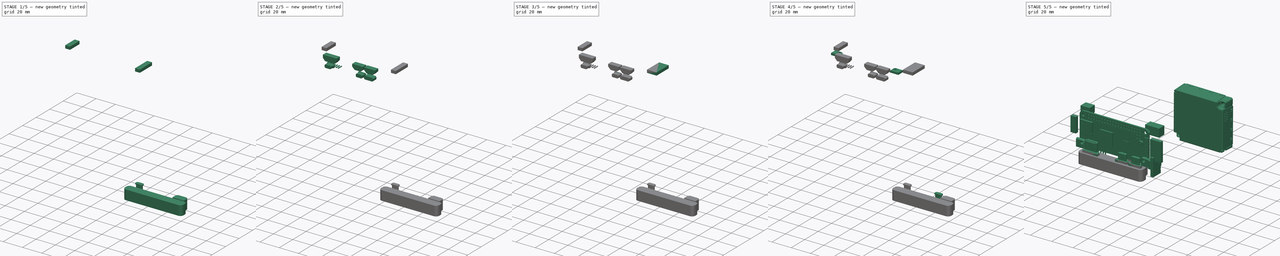
[diagram: build sequence overview — one tinted view per stage of 5, left to right]
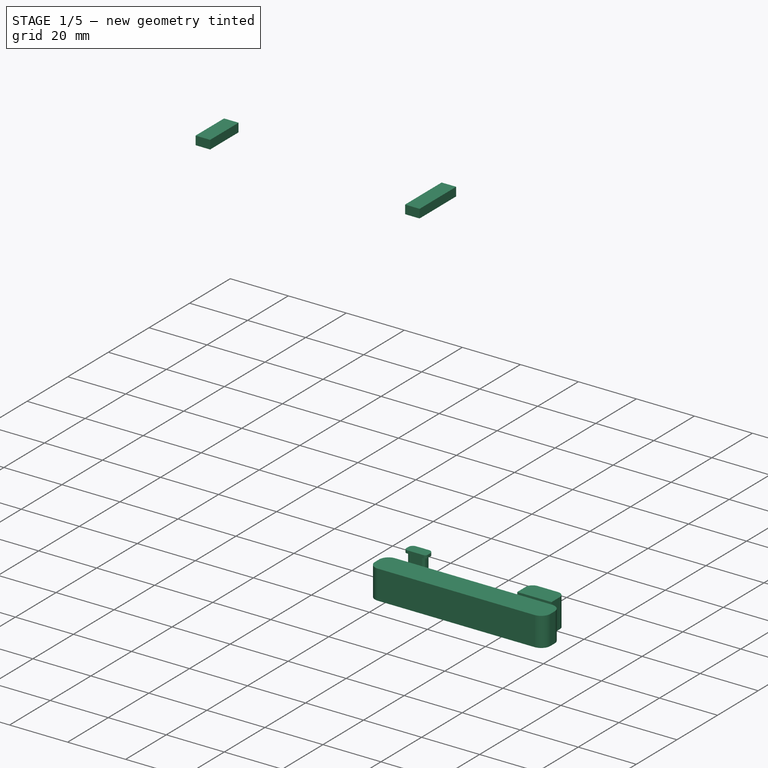
[diagram: stage 1 of 5 — iso view after this stage's code; geometry added in this stage tinted green]
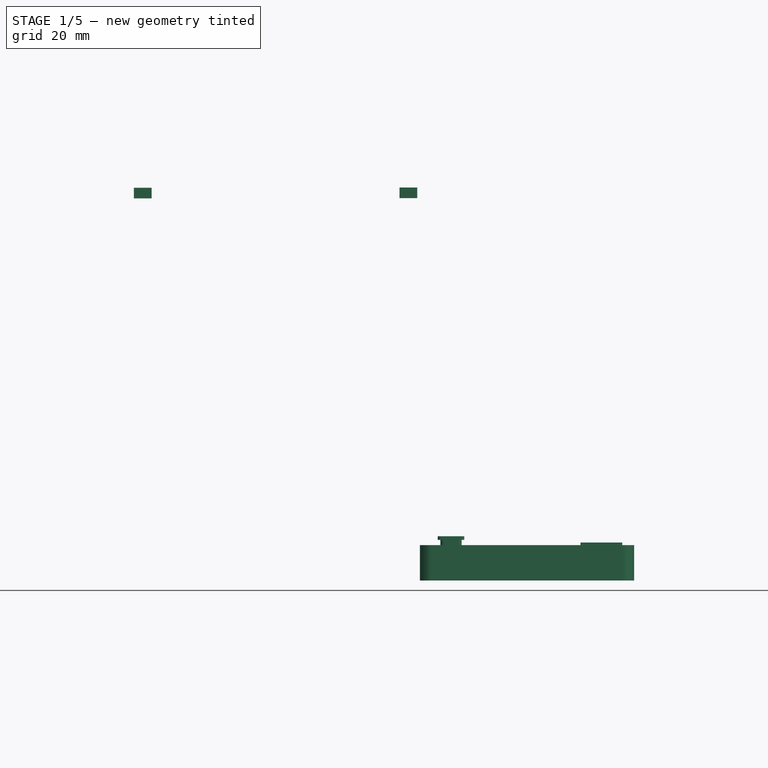
[diagram: stage 1 of 5 — front view after this stage's code; geometry added in this stage tinted green]
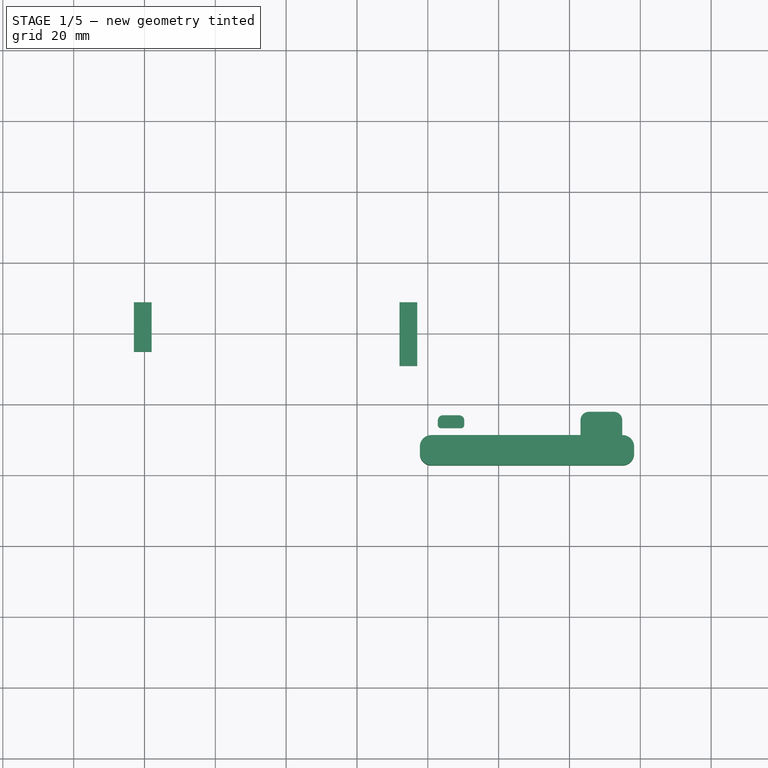
[diagram: stage 1 of 5 — top view after this stage's code; geometry added in this stage tinted green]
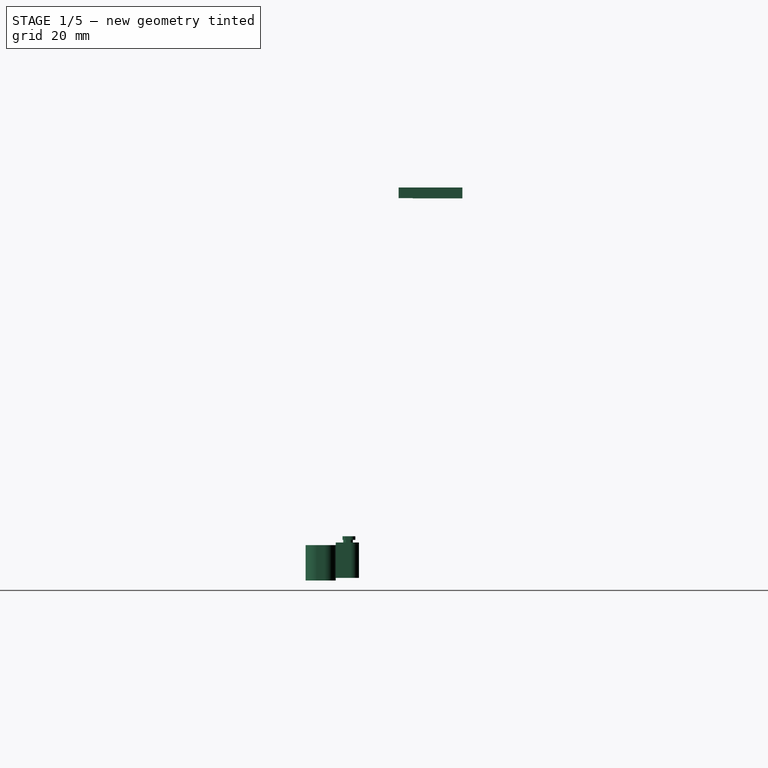
[diagram: stage 1 of 5 — right view after this stage's code; geometry added in this stage tinted green]
FCSTD DOCUMENT  (FreeCAD 1.0R39285 (Git))
Label: dreamV0
License: All rights reserved
LicenseURL: http://en.wikipedia.org/wiki/All_rights_reserved
objects: Part::Feature×85, Sketcher::SketchObject×22, Part::Extrusion×22, Part::MultiFuse×10, App::Part×9, Part::Compound×5, Part::Fillet×1
note: 167 computed .brp shape members not serialized (recipe doc carries the construction recipe); baked Part::Feature solids carry a one-line shape summary decoded from their .brp

FEATURE [Sketcher::SketchObject] Sketch207
  ArcFitTolerance = 0
  FullyConstrained = true
  MakeInternals = false
  Placement = pos=(0,0,0) rot=(0.57735,0.57735,0.57735;2.0944rad)
  sketch-geometry (4):
    g0: LineSegment StartX=8 StartY=23 StartZ=0 EndX=26 EndY=23 EndZ=0
    g1: LineSegment StartX=26 StartY=23 StartZ=0 EndX=26 EndY=20 EndZ=0
    g2: LineSegment StartX=26 StartY=20 StartZ=0 EndX=8 EndY=20 EndZ=0
    g3: LineSegment StartX=8 StartY=20 StartZ=0 EndX=8 EndY=23 EndZ=0
  constraints (12):
    c: Coincident(g0,g1)
    c: Coincident(g1,g2)
    c: Coincident(g2,g3)
    c: Coincident(g3,g0)
    c: Horizontal(g0)
    c: Horizontal(g2)
    c: Vertical(g1)
    c: Vertical(g3)
    c: DistanceX(g2) = 8
    c: DistanceX(g2,g0) = 18
    c: DistanceY(g2) = 20
    c: DistanceY(g2,g0) = 3
FEATURE [Part::Extrusion] Extrude206  label="leftInCut007"
  Base = -> Sketch207
  Dir = (1,0,0)
  DirMode = 2
  FaceMakerClass = Part::FaceMakerBullseye
  FaceMakerMode = 3
  LengthFwd = 5
  LengthRev = 0
  Placement = pos=(72,1,0) rot=(0,0,1;0rad)
  Solid = true
  Symmetric = false
FEATURE [Sketcher::SketchObject] Sketch205
  ArcFitTolerance = 0
  AttachmentSupport = -> [Extrude206]
  FullyConstrained = true
  MakeInternals = false
  MapMode = 4
  Placement = pos=(72,1,0) rot=(0.57735,0.57735,0.57735;2.0944rad)
  sketch-geometry (4):
    g0: LineSegment StartX=26 StartY=19.9 StartZ=0 EndX=12 EndY=19.9 EndZ=0
    g1: LineSegment StartX=12 StartY=19.9 StartZ=0 EndX=12 EndY=22.9 EndZ=0
    g2: LineSegment StartX=12 StartY=22.9 StartZ=0 EndX=26 EndY=22.9 EndZ=0
    g3: LineSegment StartX=26 StartY=22.9 StartZ=0 EndX=26 EndY=19.9 EndZ=0
  constraints (12):
    c: Coincident(g0,g1)
    c: Coincident(g1,g2)
    c: Coincident(g2,g3)
    c: Coincident(g3,g0)
    c: Horizontal(g0)
    c: Horizontal(g2)
    c: Vertical(g1)
    c: Vertical(g3)
    c: DistanceX(g0,g0) = 14
    c: DistanceX(g1) = 12
    c: DistanceY(g1) = 22.9
    c: DistanceY(g1,g1) = 3
FEATURE [Part::Extrusion] Extrude204  label="sdCut007"
  Base = -> Sketch205
  Dir = (1,0,0)
  DirMode = 2
  FaceMakerClass = Part::FaceMakerBullseye
  FaceMakerMode = 3
  LengthFwd = 5
  LengthRev = 0
  Placement = pos=(-70,0,0) rot=(0,0,1;0rad)
  Reversed = true
  Solid = true
  Symmetric = false
FEATURE [Sketcher::SketchObject] Sketch209
  ArcFitTolerance = 0
  FullyConstrained = true
  MakeInternals = false
  Placement = pos=(0,0,-77.25) rot=(0,0,1;0rad)
  sketch-geometry (6):
    g0: ArcOfCircle CenterX=125.5 CenterY=-4.58 CenterZ=0 NormalX=0 NormalY=0 NormalZ=1 AngleXU=0 Radius=2.4 StartAngle=1.5708 EndAngle=3.14159
    g1: ArcOfCircle CenterX=132.5 CenterY=-4.58 CenterZ=0 NormalX=0 NormalY=0 NormalZ=1 AngleXU=0 Radius=2.4 StartAngle=0 EndAngle=1.5708
    g2: LineSegment StartX=125.5 StartY=-2.18 StartZ=0 EndX=132.5 EndY=-2.18 EndZ=0
    g3: LineSegment StartX=134.9 StartY=-4.58 StartZ=0 EndX=134.9 EndY=-8.75 EndZ=0
    g4: LineSegment StartX=134.9 StartY=-8.75 StartZ=0 EndX=123.1 EndY=-8.75 EndZ=0
    g5: LineSegment StartX=123.1 StartY=-8.75 StartZ=0 EndX=123.1 EndY=-4.58 EndZ=0
  constraints (20):
    c: Vertical(g1,g1)
    c: Horizontal(g1,g0)
    c: Horizontal(g0,g0)
    c: DistanceX(g1) = 132.5
    c: Vertical(g1,g3)
    c: Horizontal(g1,g0)
    c: Coincident(g2,g0)
    c: Coincident(g2,g1)
    c: Coincident(g3,g1)
    c: Coincident(g5,g0)
    c: DistanceY(g0) = -4.58
    c: Horizontal(g4)
    c: DistanceY(g4) = -8.75
    c: Vertical(g5)
    c: DistanceX(g5) = 123.1
    c: Horizontal(g0,g1)
    c: Coincident(g4,g5)
    c: Diameter(g1) = 4.8
    c: Angle(g0) = 1.5708
    c: Coincident(g3,g4)
FEATURE [Part::Extrusion] Extrude208  label="usbCCut"
  Base = -> Sketch209
  Dir = (0,0,1)
  DirMode = 2
  FaceMakerClass = Part::FaceMakerBullseye
  FaceMakerMode = 3
  LengthFwd = 10
  LengthRev = 0
  Reversed = true
  Solid = true
  Symmetric = false
FEATURE [Sketcher::SketchObject] Sketch210
  ArcFitTolerance = 0
  FullyConstrained = true
  MakeInternals = false
  Placement = pos=(0,0,-78) rot=(0,0,1;0rad)
  sketch-geometry (8):
    g0: ArcOfCircle CenterX=81 CenterY=-12 CenterZ=0 NormalX=0 NormalY=0 NormalZ=1 AngleXU=0 Radius=3.25 StartAngle=1.5708 EndAngle=3.14159
    g1: ArcOfCircle CenterX=81 CenterY=-14 CenterZ=0 NormalX=0 NormalY=0 NormalZ=1 AngleXU=0 Radius=3.25 StartAngle=3.14159 EndAngle=4.71239
    g2: ArcOfCircle CenterX=135 CenterY=-14 CenterZ=0 NormalX=0 NormalY=0 NormalZ=1 AngleXU=0 Radius=3.25 StartAngle=4.71239 EndAngle=6.28319
    g3: ArcOfCircle CenterX=135 CenterY=-12 CenterZ=0 NormalX=0 NormalY=0 NormalZ=1 AngleXU=0 Radius=3.25 StartAngle=0 EndAngle=1.5708
    g4: LineSegment StartX=81 StartY=-17.25 StartZ=0 EndX=135 EndY=-17.25 EndZ=0
    g5: LineSegment StartX=138.25 StartY=-14 StartZ=0 EndX=138.25 EndY=-12 EndZ=0
    g6: LineSegment StartX=135 StartY=-8.75 StartZ=0 EndX=81 EndY=-8.75 EndZ=0
    g7: LineSegment StartX=77.75 StartY=-12 StartZ=0 EndX=77.75 EndY=-14 EndZ=0
  constraints (30):
    c: Horizontal(g3,g0)
    c: Vertical(g1,g0)
    c: Vertical(g3,g2)
    c: Vertical(g2,g2)
    c: Vertical(g2,g3)
    c: Vertical(g1,g1)
    c: Vertical(g0,g0)
    c: Horizontal(g0,g0)
    c: Horizontal(g3,g3)
    c: Horizontal(g1,g1)
    c: DistanceY(g3) = -8.75
    c: Vertical(g0,g1)
    c: Horizontal(g3,g0)
    c: Vertical(g2,g3)
    c: Horizontal(g2,g2)
    c: Horizontal(g2,g1)
    c: DistanceX(g2) = 135
    c: DistanceY(g2) = -14
    c: DistanceY(g2,g3) = 2
    c: DistanceX(g0,g3) = 54
    c: Coincident(g4,g1)
    c: Coincident(g4,g2)
    c: Coincident(g5,g2)
    c: Coincident(g5,g3)
    c: Coincident(g6,g3)
    c: Coincident(g6,g0)
    c: Horizontal(g6)
    c: Tangent(g6,g0)
    c: Coincident(g7,g0)
    c: Coincident(g7,g1)
FEATURE [Part::Extrusion] Extrude209  label="microUSBCut"
  Base = -> Sketch210
  Dir = (0,0,1)
  DirMode = 2
  FaceMakerClass = Part::FaceMakerBullseye
  FaceMakerMode = 3
  LengthFwd = 10
  LengthRev = 0
  Reversed = true
  Solid = true
  Symmetric = false
FEATURE [Part::MultiFuse] Fusion202  label="wireCuts"
  Shapes = -> [Extrude208,Extrude209]
FEATURE [Sketcher::SketchObject] Sketch231
  ArcFitTolerance = 0
  FullyConstrained = true
  MakeInternals = false
  Placement = pos=(0,0,0) rot=(1,0,0;1.5708rad)
  sketch-geometry (8):
    g0: ArcOfCircle CenterX=12.75 CenterY=15.33 CenterZ=0 NormalX=0 NormalY=0 NormalZ=1 AngleXU=0 Radius=0.9 StartAngle=1.5708 EndAngle=3.14159
    g1: ArcOfCircle CenterX=16.95 CenterY=15.33 CenterZ=0 NormalX=0 NormalY=0 NormalZ=1 AngleXU=0 Radius=0.9 StartAngle=8e-16 EndAngle=1.5708
    g2: ArcOfCircle CenterX=16.95 CenterY=14.43 CenterZ=0 NormalX=0 NormalY=0 NormalZ=1 AngleXU=0 Radius=0.9 StartAngle=4.71239 EndAngle=6.28319
    g3: ArcOfCircle CenterX=12.75 CenterY=14.43 CenterZ=0 NormalX=0 NormalY=0 NormalZ=1 AngleXU=0 Radius=0.9 StartAngle=3.14159 EndAngle=4.71239
    g4: LineSegment StartX=12.75 StartY=16.23 StartZ=0 EndX=16.95 EndY=16.23 EndZ=0
    g5: LineSegment StartX=17.85 StartY=15.33 StartZ=0 EndX=17.85 EndY=14.43 EndZ=0
    g6: LineSegment StartX=16.95 StartY=13.53 StartZ=0 EndX=12.75 EndY=13.53 EndZ=0
    g7: LineSegment StartX=11.85 StartY=14.43 StartZ=0 EndX=11.85 EndY=15.33 EndZ=0
  constraints (28):
    c: Coincident(g4,g0)
    c: Coincident(g4,g1)
    c: Horizontal(g4)
    c: Coincident(g5,g1)
    c: Coincident(g5,g2)
    c: Coincident(g6,g2)
    c: Coincident(g6,g3)
    c: Horizontal(g6)
    c: Coincident(g7,g3)
    c: Coincident(g7,g0)
    c: Vertical(g7)
    c: Radius(g0) = 0.9
    c: DistanceY(g0,g0) = 0
    c: Angle(g3) = 1.5708
    c: DistanceY(g3,g3) = 0
    c: DistanceY(g3,g0) = 0.9
    c: DistanceY(g3) = 14.43
    c: Radius(g3) = 0.9
    c: Radius(g2) = 0.9
    c: Radius(g1) = 0.9
    c: DistanceX(g6,g6) = 4.2
    c: DistanceX(g3) = 12.75
    c: DistanceY(g1,g1) = 0
    c: DistanceX(g2,g2) = 0
    c: Angle(g1) = 1.5708
    c: Angle(g2) = 1.5708
    c: Vertical(g5)
    c: DistanceX(g0,g0) = 0
FEATURE [Part::Extrusion] Extrude229
  Base = -> Sketch231
  Dir = (0,-1,2e-16)
  DirMode = 2
  FaceMakerClass = Part::FaceMakerBullseye
  FaceMakerMode = 3
  LengthFwd = 5
  LengthRev = 0
  Placement = pos=(-0.3,2,-0.1) rot=(0,0,1;0rad)
  Solid = true
  Symmetric = false
FEATURE [Sketcher::SketchObject] Sketch232
  ArcFitTolerance = 0
  FullyConstrained = true
  MakeInternals = false
  Placement = pos=(0,0,0) rot=(1,0,0;1.5708rad)
  sketch-geometry (8):
    g0: ArcOfCircle CenterX=11.7 CenterY=15.45 CenterZ=0 NormalX=0 NormalY=0 NormalZ=1 AngleXU=0 Radius=0.9 StartAngle=1.5708 EndAngle=3.14159
    g1: ArcOfCircle CenterX=17.4 CenterY=15.45 CenterZ=0 NormalX=0 NormalY=0 NormalZ=1 AngleXU=0 Radius=0.9 StartAngle=4e-16 EndAngle=1.5708
    g2: ArcOfCircle CenterX=16.8 CenterY=14.2 CenterZ=0 NormalX=0 NormalY=0 NormalZ=1 AngleXU=0 Radius=1.5 StartAngle=4.71239 EndAngle=6.28319
    g3: ArcOfCircle CenterX=12.3 CenterY=14.2 CenterZ=0 NormalX=0 NormalY=0 NormalZ=1 AngleXU=0 Radius=1.5 StartAngle=3.14159 EndAngle=4.71239
    g4: LineSegment StartX=11.7 StartY=16.35 StartZ=0 EndX=17.4 EndY=16.35 EndZ=0
    g5: LineSegment StartX=18.3 StartY=15.45 StartZ=0 EndX=18.3 EndY=14.2 EndZ=0
    g6: LineSegment StartX=16.8 StartY=12.7 StartZ=0 EndX=12.3 EndY=12.7 EndZ=0
    g7: LineSegment StartX=10.8 StartY=14.2 StartZ=0 EndX=10.8 EndY=15.45 EndZ=0
  constraints (28):
    c: Coincident(g4,g0)
    c: Coincident(g4,g1)
    c: Horizontal(g4)
    c: Coincident(g5,g1)
    c: Coincident(g5,g2)
    c: Coincident(g6,g2)
    c: Coincident(g6,g3)
    c: Horizontal(g6)
    c: Coincident(g7,g3)
    c: Coincident(g7,g0)
    c: Vertical(g7)
    c: Radius(g0) = 0.9
    c: DistanceY(g0,g0) = 0
    c: Angle(g3) = 1.5708
    c: DistanceY(g3,g3) = 0
    c: DistanceY(g3,g0) = 1.25
    c: DistanceY(g3) = 14.2
    c: Radius(g3) = 1.5
    c: Radius(g2) = 1.5
    c: Radius(g1) = 0.9
    c: DistanceX(g6,g6) = 4.5
    c: DistanceX(g3) = 12.3
    c: DistanceY(g1,g1) = 0
    c: DistanceX(g2,g2) = 0
    c: Angle(g1) = 1.5708
    c: Angle(g2) = 1.5708
    c: Vertical(g5)
    c: DistanceX(g0,g0) = 0
FEATURE [Part::Extrusion] Extrude230
  Base = -> Sketch232
  Dir = (0,-1,2e-16)
  DirMode = 2
  FaceMakerClass = Part::FaceMakerBullseye
  FaceMakerMode = 3
  LengthFwd = 1
  LengthRev = 0
  Placement = pos=(0,2.5,0) rot=(0,0,1;0rad)
  Solid = true
  Symmetric = false
FEATURE [Part::MultiFuse] Fusion223  label="button005"
  Placement = pos=(72,9.5,-78) rot=(1,0,0;1.5708rad)
  Shapes = -> [Extrude229,Extrude230]
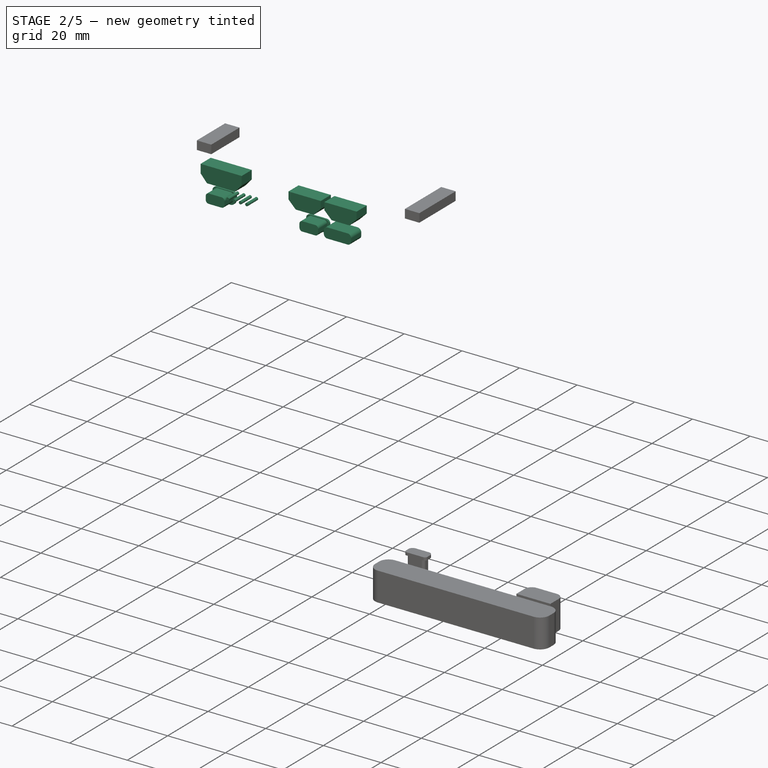
[diagram: stage 2 of 5 — iso view after this stage's code; geometry added in this stage tinted green]
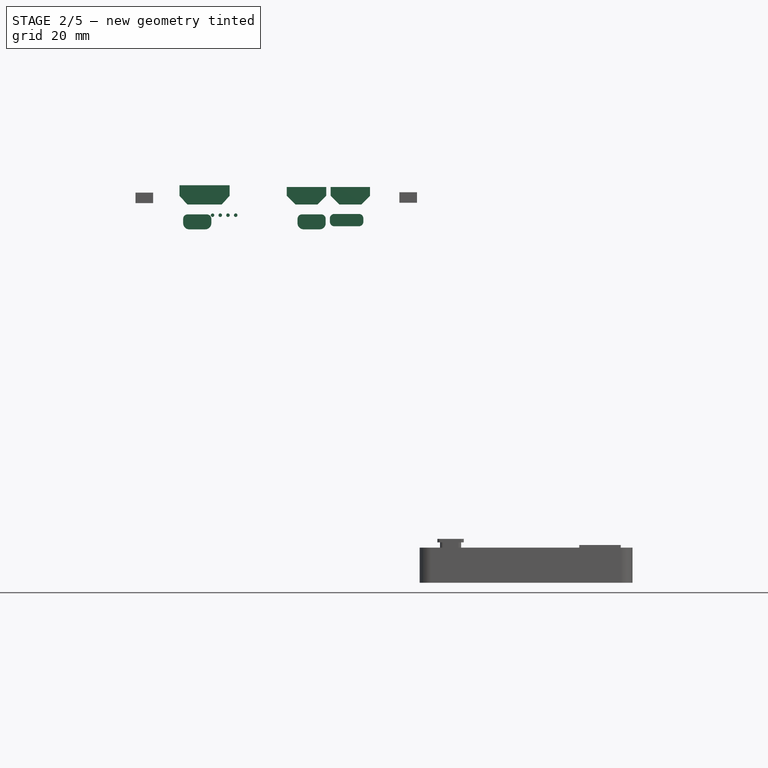
[diagram: stage 2 of 5 — front view after this stage's code; geometry added in this stage tinted green]
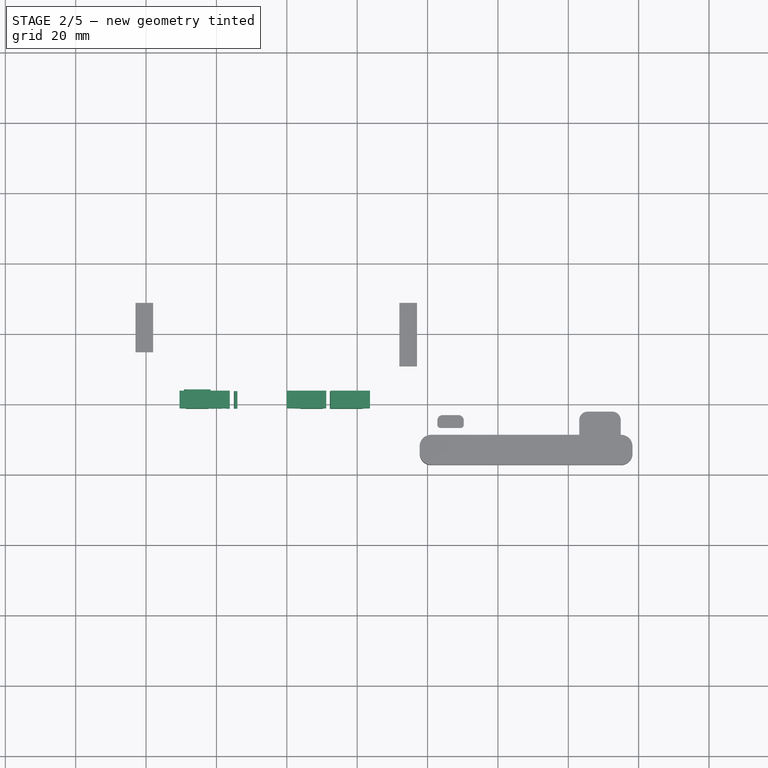
[diagram: stage 2 of 5 — top view after this stage's code; geometry added in this stage tinted green]
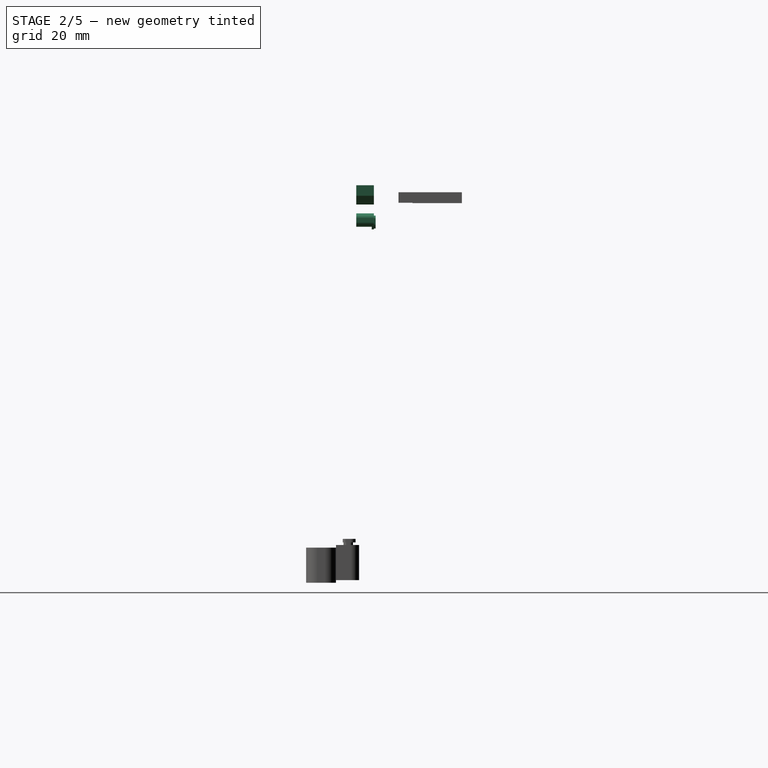
[diagram: stage 2 of 5 — right view after this stage's code; geometry added in this stage tinted green]
FEATURE [Sketcher::SketchObject] Sketch203
  ArcFitTolerance = 0
  FullyConstrained = true
  MakeInternals = false
  Placement = pos=(0,0,0) rot=(1,0,0;1.5708rad)
  sketch-geometry (8):
    g0: ArcOfCircle CenterX=11.7 CenterY=15.45 CenterZ=0 NormalX=0 NormalY=0 NormalZ=1 AngleXU=0 Radius=0.9 StartAngle=1.5708 EndAngle=3.14159
    g1: ArcOfCircle CenterX=17.4 CenterY=15.45 CenterZ=0 NormalX=0 NormalY=0 NormalZ=1 AngleXU=0 Radius=0.9 StartAngle=4e-16 EndAngle=1.5708
    g2: ArcOfCircle CenterX=16.8 CenterY=14.2 CenterZ=0 NormalX=0 NormalY=0 NormalZ=1 AngleXU=0 Radius=1.5 StartAngle=4.71239 EndAngle=6.28319
    g3: ArcOfCircle CenterX=12.3 CenterY=14.2 CenterZ=0 NormalX=0 NormalY=0 NormalZ=1 AngleXU=0 Radius=1.5 StartAngle=3.14159 EndAngle=4.71239
    g4: LineSegment StartX=11.7 StartY=16.35 StartZ=0 EndX=17.4 EndY=16.35 EndZ=0
    g5: LineSegment StartX=18.3 StartY=15.45 StartZ=0 EndX=18.3 EndY=14.2 EndZ=0
    g6: LineSegment StartX=16.8 StartY=12.7 StartZ=0 EndX=12.3 EndY=12.7 EndZ=0
    g7: LineSegment StartX=10.8 StartY=14.2 StartZ=0 EndX=10.8 EndY=15.45 EndZ=0
  constraints (28):
    c: Coincident(g4,g0)
    c: Coincident(g4,g1)
    c: Horizontal(g4)
    c: Coincident(g5,g1)
    c: Coincident(g5,g2)
    c: Coincident(g6,g2)
    c: Coincident(g6,g3)
    c: Horizontal(g6)
    c: Coincident(g7,g3)
    c: Coincident(g7,g0)
    c: Vertical(g7)
    c: Radius(g0) = 0.9
    c: DistanceY(g0,g0) = 0
    c: Angle(g3) = 1.5708
    c: DistanceY(g3,g3) = 0
    c: DistanceY(g3,g0) = 1.25
    c: DistanceY(g3) = 14.2
    c: Radius(g3) = 1.5
    c: Radius(g2) = 1.5
    c: Radius(g1) = 0.9
    c: DistanceX(g6,g6) = 4.5
    c: DistanceX(g3) = 12.3
    c: DistanceY(g1,g1) = 0
    c: DistanceX(g2,g2) = 0
    c: Angle(g1) = 1.5708
    c: Angle(g2) = 1.5708
    c: Vertical(g5)
    c: DistanceX(g0,g0) = 0
FEATURE [Part::Extrusion] Extrude202
  Base = -> Sketch203
  Dir = (0,-1,2e-16)
  DirMode = 2
  FaceMakerClass = Part::FaceMakerBullseye
  FaceMakerMode = 3
  LengthFwd = 1
  LengthRev = 0
  Placement = pos=(0,2.5,0) rot=(0,0,1;0rad)
  Solid = true
  Symmetric = false
FEATURE [Sketcher::SketchObject] Sketch204
  ArcFitTolerance = 0
  FullyConstrained = true
  MakeInternals = false
  Placement = pos=(0,0,0) rot=(1,0,0;1.5708rad)
  sketch-geometry (46):
    g0: LineSegment StartX=11.75 StartY=19.5 StartZ=0 EndX=21.5 EndY=19.5 EndZ=0
    g1: LineSegment StartX=21.5 StartY=19.5 StartZ=0 EndX=23.75 EndY=22 EndZ=0
    g2: LineSegment StartX=23.75 StartY=22 StartZ=0 EndX=23.75 EndY=25 EndZ=0
    g3: LineSegment StartX=23.75 StartY=25 StartZ=0 EndX=9.5 EndY=25 EndZ=0
    g4: LineSegment StartX=9.5 StartY=25 StartZ=0 EndX=9.5 EndY=22 EndZ=0
    g5: LineSegment StartX=40 StartY=24.5 StartZ=0 EndX=40 EndY=22 EndZ=0
    g6: LineSegment StartX=40 StartY=22 StartZ=0 EndX=42.5 EndY=19.5 EndZ=0
    g7: LineSegment StartX=42.5 StartY=19.5 StartZ=0 EndX=48.7 EndY=19.5 EndZ=0
    g8: LineSegment StartX=48.7 StartY=19.5 StartZ=0 EndX=51.2 EndY=22 EndZ=0
    g9: LineSegment StartX=51.2 StartY=22 StartZ=0 EndX=51.2 EndY=24.5 EndZ=0
    g10: LineSegment StartX=51.2 StartY=24.5 StartZ=0 EndX=40 EndY=24.5 EndZ=0
    g11: LineSegment StartX=52.45 StartY=24.5 StartZ=0 EndX=52.45 EndY=22 EndZ=0
    g12: LineSegment StartX=52.45 StartY=22 StartZ=0 EndX=54.95 EndY=19.5 EndZ=0
    g13: LineSegment StartX=54.95 StartY=19.5 StartZ=0 EndX=61.15 EndY=19.5 EndZ=0
    g14: LineSegment StartX=61.15 StartY=19.5 StartZ=0 EndX=63.65 EndY=22 EndZ=0
    g15: LineSegment StartX=63.65 StartY=22 StartZ=0 EndX=63.65 EndY=24.5 EndZ=0
    g16: LineSegment StartX=63.65 StartY=24.5 StartZ=0 EndX=52.45 EndY=24.5 EndZ=0
    g17: LineSegment StartX=9.5 StartY=22 StartZ=0 EndX=11.75 EndY=19.5 EndZ=0
    g18: ArcOfCircle CenterX=12.3 CenterY=15.45 CenterZ=0 NormalX=0 NormalY=0 NormalZ=1 AngleXU=0 Radius=1 StartAngle=1.5708 EndAngle=3.14159
    g19: LineSegment StartX=11.3 StartY=15.45 StartZ=0 EndX=11.3 EndY=14.2 EndZ=0
    g20: LineSegment StartX=12.3 StartY=16.45 StartZ=0 EndX=16.8 EndY=16.45 EndZ=0
    g21: ArcOfCircle CenterX=16.8 CenterY=15.45 CenterZ=0 NormalX=0 NormalY=0 NormalZ=1 AngleXU=0 Radius=1 StartAngle=3e-16 EndAngle=1.5708
    g22: ArcOfCircle CenterX=16.8 CenterY=14.2 CenterZ=0 NormalX=0 NormalY=0 NormalZ=1 AngleXU=0 Radius=1 StartAngle=4.71239 EndAngle=6.28319
    g23: ArcOfCircle CenterX=12.3 CenterY=14.2 CenterZ=0 NormalX=0 NormalY=0 NormalZ=1 AngleXU=0 Radius=1 StartAngle=3.14159 EndAngle=4.71239
    g24: LineSegment StartX=12.3 StartY=13.2 StartZ=0 EndX=16.8 EndY=13.2 EndZ=0
    g25: LineSegment StartX=17.8 StartY=15.45 StartZ=0 EndX=17.8 EndY=14.2 EndZ=0
    g26: Circle CenterX=18.9 CenterY=16.475 CenterZ=0 NormalX=0 NormalY=0 NormalZ=1 AngleXU=0 Radius=0.5
    g27: Circle CenterX=21.09 CenterY=16.475 CenterZ=0 NormalX=0 NormalY=0 NormalZ=1 AngleXU=0 Radius=0.5
    g28: Circle CenterX=23.28 CenterY=16.475 CenterZ=0 NormalX=0 NormalY=0 NormalZ=1 AngleXU=0 Radius=0.5
    g29: Circle CenterX=25.47 CenterY=16.475 CenterZ=0 NormalX=0 NormalY=0 NormalZ=1 AngleXU=0 Radius=0.5
    g30: LineSegment StartX=44.8 StartY=16.45 StartZ=0 EndX=49.3 EndY=16.45 EndZ=0
    g31: LineSegment StartX=50.3 StartY=15.45 StartZ=0 EndX=50.3 EndY=14.2 EndZ=0
    g32: LineSegment StartX=49.3 StartY=13.2 StartZ=0 EndX=44.8 EndY=13.2 EndZ=0
    g33: LineSegment StartX=43.8 StartY=15.45 StartZ=0 EndX=43.8 EndY=14.2 EndZ=0
    g34: ArcOfCircle CenterX=44.8 CenterY=15.45 CenterZ=0 NormalX=0 NormalY=0 NormalZ=1 AngleXU=0 Radius=1 StartAngle=1.5708 EndAngle=3.14159
    g35: ArcOfCircle CenterX=49.3 CenterY=15.45 CenterZ=0 NormalX=0 NormalY=0 NormalZ=1 AngleXU=0 Radius=1 StartAngle=3e-16 EndAngle=1.5708
    g36: ArcOfCircle CenterX=49.3 CenterY=14.2 CenterZ=0 NormalX=0 NormalY=0 NormalZ=1 AngleXU=0 Radius=1 StartAngle=4.71239 EndAngle=6.28319
    g37: ArcOfCircle CenterX=44.8 CenterY=14.2 CenterZ=0 NormalX=0 NormalY=0 NormalZ=1 AngleXU=0 Radius=1 StartAngle=3.14159 EndAngle=4.71239
    g38: LineSegment StartX=52.25 StartY=15.58 StartZ=0 EndX=52.25 EndY=14.58 EndZ=0
    g39: LineSegment StartX=53.5 StartY=16.83 StartZ=0 EndX=60.5 EndY=16.83 EndZ=0
    g40: LineSegment StartX=53.5 StartY=13.33 StartZ=0 EndX=60.5 EndY=13.33 EndZ=0
    g41: LineSegment StartX=61.75 StartY=15.58 StartZ=0 EndX=61.75 EndY=14.58 EndZ=0
    g42: ArcOfCircle CenterX=53.5 CenterY=15.58 CenterZ=0 NormalX=0 NormalY=0 NormalZ=1 AngleXU=0 Radius=1.25 StartAngle=1.5708 EndAngle=3.14159
    g43: ArcOfCircle CenterX=60.5 CenterY=15.58 CenterZ=0 NormalX=0 NormalY=0 NormalZ=1 AngleXU=0 Radius=1.25 StartAngle=2e-16 EndAngle=1.5708
    g44: ArcOfCircle CenterX=60.5 CenterY=14.58 CenterZ=0 NormalX=0 NormalY=0 NormalZ=1 AngleXU=0 Radius=1.25 StartAngle=4.7124 EndAngle=6.28319
    g45: ArcOfCircle CenterX=53.5 CenterY=14.58 CenterZ=0 NormalX=0 NormalY=0 NormalZ=1 AngleXU=0 Radius=1.25 StartAngle=3.14159 EndAngle=4.71239
  constraints (150):
    c: Horizontal(g0)
    c: Coincident(g0,g1)
    c: Coincident(g1,g2)
    c: Coincident(g2,g3)
    c: Horizontal(g3)
    c: Coincident(g3,g4)
    c: Vertical(g4)
    c: Coincident(g5,g6)
    c: Coincident(g6,g7)
    c: Horizontal(g7)
    c: Coincident(g7,g8)
    c: Coincident(g8,g9)
    c: Vertical(g9)
    c: Coincident(g9,g10)
    c: Coincident(g10,g5)
    c: Coincident(g11,g12)
    c: Coincident(g12,g13)
    c: Horizontal(g13)
    c: Coincident(g13,g14)
    c: Coincident(g14,g15)
    c: Vertical(g15)
    c: Coincident(g15,g16)
    c: Coincident(g16,g11)
    c: Horizontal(g16)
    c: Coincident(g17,g4)
    c: Coincident(g0,g17)
    c: DistanceX(g3) = 9.5
    c: DistanceX(g3,g3) = 14.25
    c: Vertical(g2)
    c: DistanceY(g3) = 25
    c: DistanceY(g4) = 22
    c: DistanceY(g4,g1) = 0
    c: DistanceX(g4,g0) = 2.25
    c: DistanceX(g0,g1) = 2.25
    c: Horizontal(g10)
    c: Vertical(g5)
    c: Vertical(g11)
    c: DistanceX(g5) = 40
    c: DistanceX(g5,g9) = 11.2
    c: DistanceY(g11,g9) = 0
    c: DistanceY(g5,g5) = 2.5
    c: DistanceY(g8,g5) = 0
    c: DistanceY(g11,g8) = 0
    c: DistanceY(g14,g11) = 0
    c: DistanceY(g6,g5) = 2.5
    c: DistanceX(g5,g6) = 2.5
    c: DistanceX(g7,g8) = 2.5
    c: DistanceX(g9,g11) = 1.25
    c: DistanceY(g12,g7) = 0
    c: DistanceX(g11,g12) = 2.5
    c: DistanceX(g13,g14) = 2.5
    c: DistanceX(g11,g15) = 11.2
    c: DistanceY(g0,g4) = 2.5
    c: DistanceY(g5) = 24.5
    c: Coincident(g19,g18)
    c: Vertical(g19)
    c: Horizontal(g20)
    c: Coincident(g21,g20)
    c: Coincident(g23,g19)
    c: Coincident(g24,g23)
    c: Coincident(g24,g22)
    c: Horizontal(g24)
    c: Coincident(g25,g21)
    c: Coincident(g25,g22)
    c: Vertical(g25)
    c: Coincident(g18,g20)
    c: Radius(g18) = 1
    c: Angle(g18) = 1.5708
    c: Angle(g21) = 1.5708
    c: Angle(g22) = 1.5708
    c: Angle(g23) = 1.5708
    c: DistanceX(g23) = 12.3
    c: DistanceY(g23) = 13.2
    c: DistanceX(g19) = 11.3
    c: DistanceY(g23,g19) = 0
    c: DistanceY(g18,g18) = 0
    c: DistanceX(g21,g20) = 0
    c: Radius(g21) = 1
    c: Radius(g22) = 1
    c: DistanceX(g22,g22) = 0
    c: DistanceX(g18,g20) = 4.5
    c: DistanceX(g26) = 18.9
    c: Radius(g26) = 0.5
    c: DistanceY(g26) = 16.475
    c: DistanceX(g26,g27) = 2.19
    c: DistanceY(g26,g27) = 0
    c: DistanceY(g28,g27) = 0
    c: DistanceY(g29,g28) = 0
    c: DistanceX(g27,g28) = 2.19
    c: Radius(g27) = 0.5
    c: Radius(g28) = 0.5
    c: Radius(g29) = 0.5
    c: DistanceX(g28,g29) = 2.19
    c: DistanceY(g23,g18) = 1.25
    c: Horizontal(g30)
    c: Vertical(g31)
    c: Vertical(g33)
    c: Coincident(g33,g34)
    c: Coincident(g33,g37)
    c: Coincident(g32,g37)
    c: Coincident(g32,g36)
    c: Coincident(g31,g36)
    c: Coincident(g31,g35)
    c: Coincident(g30,g35)
    c: Coincident(g30,g34)
    c: Angle(g34) = 1.5708
    c: Angle(g35) = 1.5708
    c: Angle(g37) = 1.5708
    c: Angle(g36) = 1.5708
    c: DistanceY(g18,g34) = 0
    c: DistanceY(g34,g33) = 0
    c: Radius(g34) = 1
    c: DistanceY(g33,g37) = 0
    c: Radius(g37) = 1
    c: Radius(g36) = 1
    c: Radius(g35) = 1
    c: DistanceY(g33,g23) = 0
    c: DistanceY(g31,g36) = 0
    c: Horizontal(g32)
    c: DistanceX(g35,g30) = 0
    c: DistanceX(g32,g32) = 4.5
    c: Vertical(g38)
    c: Horizontal(g39)
    c: Horizontal(g40)
    c: Vertical(g41)
    c: Coincident(g42,g38)
    c: Coincident(g42,g39)
    c: Coincident(g43,g39)
    c: Coincident(g45,g38)
    c: Coincident(g45,g40)
    c: Coincident(g40,g44)
    c: Coincident(g41,g44)
    c: Coincident(g41,g43)
    c: DistanceX(g42) = 53.5
    c: DistanceY(g42) = 15.58
    c: DistanceX(g42,g45) = 0
    c: DistanceY(g45,g42) = 1
    c: Radius(g42) = 1.25
    c: Radius(g44) = 1.25
    c: Radius(g43) = 1.25
    c: DistanceX(g45,g40) = 0
    c: DistanceX(g42,g39) = 0
    c: DistanceY(g42,g43) = 0
    c: DistanceY(g44,g45) = 0
    c: DistanceY(g45,g38) = 0
    c: DistanceX(g42,g43) = 7
    c: DistanceX(g18,g34) = 32.5
    c: DistanceY(g41,g44) = 0
    c: DistanceY(g43,g41) = 0
    c: Angle(g42) = 1.5708
FEATURE [Part::Extrusion] Extrude203  label="lightBottomCutDone007"
  Base = -> Sketch204
  Dir = (0,-1,2e-16)
  DirMode = 2
  FaceMakerClass = Part::FaceMakerBullseye
  FaceMakerMode = 3
  LengthFwd = 5
  LengthRev = 0
  Placement = pos=(0,2,0) rot=(0,0,1;0rad)
  Solid = true
  Symmetric = false
FEATURE [Sketcher::SketchObject] Sketch206
  ArcFitTolerance = 0
  FullyConstrained = true
  MakeInternals = false
  Placement = pos=(0,0,0) rot=(1,0,0;1.5708rad)
  sketch-geometry (8):
    g0: ArcOfCircle CenterX=11.8 CenterY=15.45 CenterZ=0 NormalX=0 NormalY=0 NormalZ=1 AngleXU=0 Radius=1.25 StartAngle=1.5708 EndAngle=3.14159
    g1: ArcOfCircle CenterX=17.3 CenterY=15.45 CenterZ=0 NormalX=0 NormalY=0 NormalZ=1 AngleXU=0 Radius=1.25 StartAngle=-9e-16 EndAngle=1.5708
    g2: ArcOfCircle CenterX=16.8 CenterY=14.2 CenterZ=0 NormalX=0 NormalY=0 NormalZ=1 AngleXU=0 Radius=1.75 StartAngle=4.71239 EndAngle=6.28319
    g3: ArcOfCircle CenterX=12.3 CenterY=14.2 CenterZ=0 NormalX=0 NormalY=0 NormalZ=1 AngleXU=0 Radius=1.75 StartAngle=3.14159 EndAngle=4.71239
    g4: LineSegment StartX=11.8 StartY=16.7 StartZ=0 EndX=17.3 EndY=16.7 EndZ=0
    g5: LineSegment StartX=18.55 StartY=15.45 StartZ=0 EndX=18.55 EndY=14.2 EndZ=0
    g6: LineSegment StartX=16.8 StartY=12.45 StartZ=0 EndX=12.3 EndY=12.45 EndZ=0
    g7: LineSegment StartX=10.55 StartY=14.2 StartZ=0 EndX=10.55 EndY=15.45 EndZ=0
  constraints (28):
    c: Coincident(g4,g0)
    c: Coincident(g4,g1)
    c: Horizontal(g4)
    c: Coincident(g5,g1)
    c: Coincident(g5,g2)
    c: Coincident(g6,g2)
    c: Coincident(g6,g3)
    c: Horizontal(g6)
    c: Coincident(g7,g3)
    c: Coincident(g7,g0)
    c: Vertical(g7)
    c: Radius(g0) = 1.25
    c: DistanceY(g0,g0) = 0
    c: Angle(g3) = 1.5708
    c: DistanceY(g3,g3) = 0
    c: DistanceY(g3,g0) = 1.25
    c: DistanceY(g3) = 14.2
    c: Radius(g3) = 1.75
    c: Radius(g2) = 1.75
    c: Radius(g1) = 1.25
    c: DistanceX(g6,g6) = 4.5
    c: DistanceX(g3) = 12.3
    c: DistanceY(g1,g1) = 0
    c: DistanceX(g2,g2) = 0
    c: Angle(g1) = 1.5708
    c: Angle(g2) = 1.5708
    c: Vertical(g5)
    c: DistanceX(g0,g0) = 0
FEATURE [Part::Extrusion] Extrude207  label="buttonCuts015"
  Base = -> Sketch206
  Dir = (0,-1,2e-16)
  DirMode = 2
  FaceMakerClass = Part::FaceMakerBullseye
  FaceMakerMode = 3
  LengthFwd = 0.6
  LengthRev = 0
  Placement = pos=(32.5,2,0) rot=(0,0,1;0rad)
  Solid = true
  Symmetric = false
FEATURE [Part::MultiFuse] Fusion201  label="bottomCutsHorDone007"
  Shapes = -> [Extrude204,Extrude206]
FEATURE [Sketcher::SketchObject] Sketch208
  ArcFitTolerance = 0
  FullyConstrained = true
  MakeInternals = false
  Placement = pos=(0,0,0) rot=(1,0,0;1.5708rad)
  sketch-geometry (8):
    g0: ArcOfCircle CenterX=11.8 CenterY=15.45 CenterZ=0 NormalX=0 NormalY=0 NormalZ=1 AngleXU=0 Radius=1.25 StartAngle=1.5708 EndAngle=3.14159
    g1: ArcOfCircle CenterX=17.3 CenterY=15.45 CenterZ=0 NormalX=0 NormalY=0 NormalZ=1 AngleXU=0 Radius=1.25 StartAngle=-9e-16 EndAngle=1.5708
    g2: ArcOfCircle CenterX=16.8 CenterY=14.2 CenterZ=0 NormalX=0 NormalY=0 NormalZ=1 AngleXU=0 Radius=1.75 StartAngle=4.71239 EndAngle=6.28319
    g3: ArcOfCircle CenterX=12.3 CenterY=14.2 CenterZ=0 NormalX=0 NormalY=0 NormalZ=1 AngleXU=0 Radius=1.75 StartAngle=3.14159 EndAngle=4.71239
    g4: LineSegment StartX=11.8 StartY=16.7 StartZ=0 EndX=17.3 EndY=16.7 EndZ=0
    g5: LineSegment StartX=18.55 StartY=15.45 StartZ=0 EndX=18.55 EndY=14.2 EndZ=0
    g6: LineSegment StartX=16.8 StartY=12.45 StartZ=0 EndX=12.3 EndY=12.45 EndZ=0
    g7: LineSegment StartX=10.55 StartY=14.2 StartZ=0 EndX=10.55 EndY=15.45 EndZ=0
  constraints (28):
    c: Coincident(g4,g0)
    c: Coincident(g4,g1)
    c: Horizontal(g4)
    c: Coincident(g5,g1)
    c: Coincident(g5,g2)
    c: Coincident(g6,g2)
    c: Coincident(g6,g3)
    c: Horizontal(g6)
    c: Coincident(g7,g3)
    c: Coincident(g7,g0)
    c: Vertical(g7)
    c: Radius(g0) = 1.25
    c: DistanceY(g0,g0) = 0
    c: Angle(g3) = 1.5708
    c: DistanceY(g3,g3) = 0
    c: DistanceY(g3,g0) = 1.25
    c: DistanceY(g3) = 14.2
    c: Radius(g3) = 1.75
    c: Radius(g2) = 1.75
    c: Radius(g1) = 1.25
    c: DistanceX(g6,g6) = 4.5
    c: DistanceX(g3) = 12.3
    c: DistanceY(g1,g1) = 0
    c: DistanceX(g2,g2) = 0
    c: Angle(g1) = 1.5708
    c: Angle(g2) = 1.5708
    c: Vertical(g5)
    c: DistanceX(g0,g0) = 0
FEATURE [Part::Extrusion] Extrude205  label="buttonCuts014"
  Base = -> Sketch208
  Dir = (0,-1,2e-16)
  DirMode = 2
  FaceMakerClass = Part::FaceMakerBullseye
  FaceMakerMode = 3
  LengthFwd = 0.6
  LengthRev = 0
  Placement = pos=(0,2,0) rot=(0,0,1;0rad)
  Solid = true
  Symmetric = false
FEATURE [Part::MultiFuse] Fusion199  label="bottomButtonCuts009"
  Shapes = -> [Extrude207,Extrude205]
FEATURE [Part::MultiFuse] Fusion200  label="bottomCuts007"
  Shapes = -> [Fusion201,Fusion199,Extrude203]
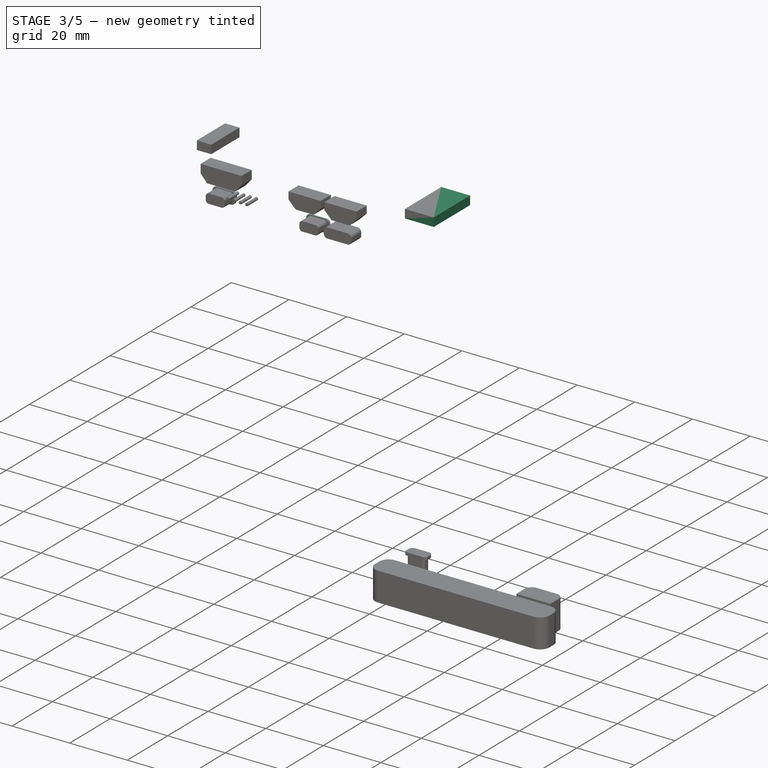
[diagram: stage 3 of 5 — iso view after this stage's code; geometry added in this stage tinted green]
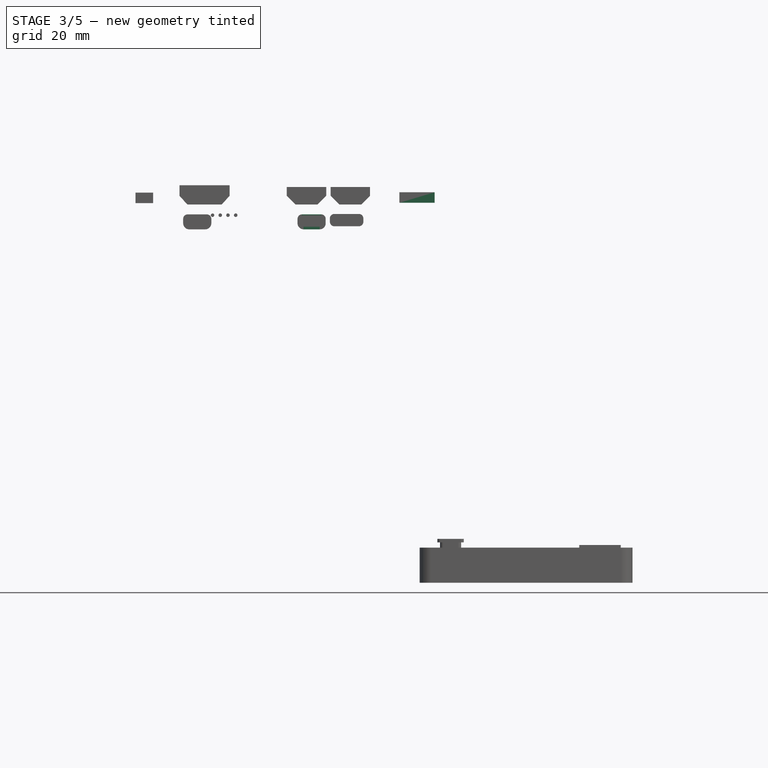
[diagram: stage 3 of 5 — front view after this stage's code; geometry added in this stage tinted green]
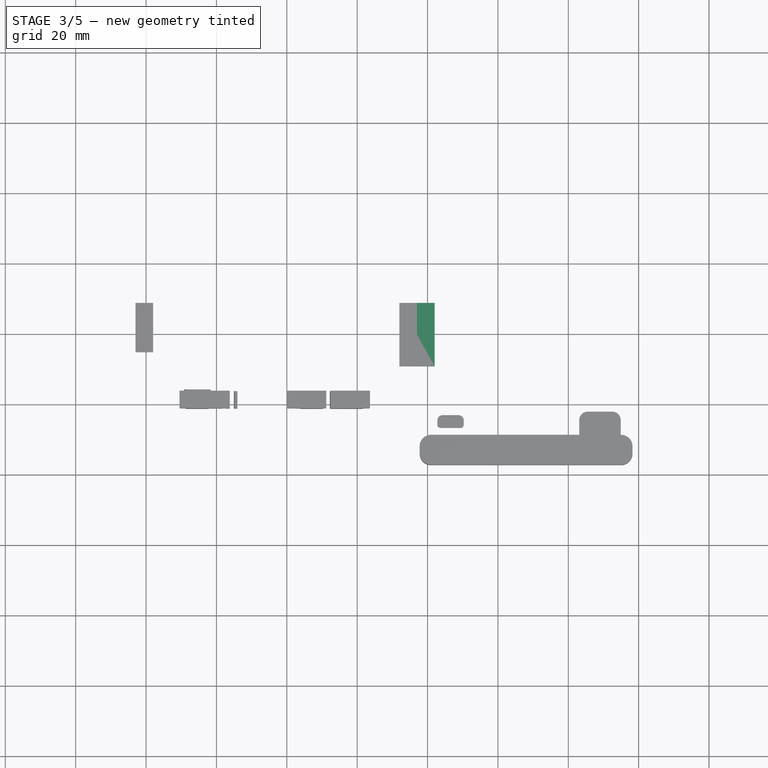
[diagram: stage 3 of 5 — top view after this stage's code; geometry added in this stage tinted green]
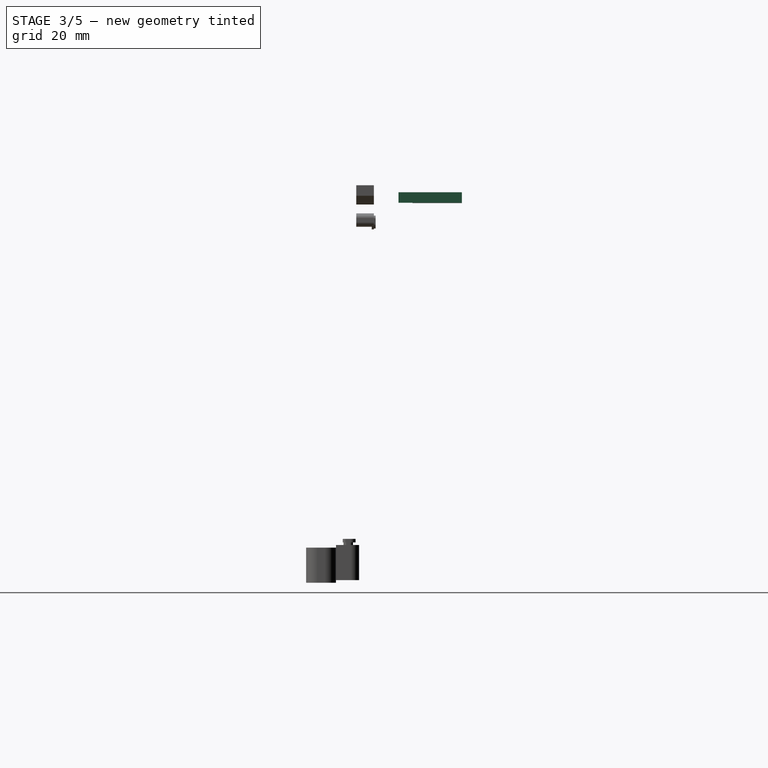
[diagram: stage 3 of 5 — right view after this stage's code; geometry added in this stage tinted green]
FEATURE [Sketcher::SketchObject] Sketch185
  ArcFitTolerance = 0
  FullyConstrained = true
  MakeInternals = false
  Placement = pos=(0,0,0) rot=(1,0,0;1.5708rad)
  sketch-geometry (8):
    g0: ArcOfCircle CenterX=11.8 CenterY=15.45 CenterZ=0 NormalX=0 NormalY=0 NormalZ=1 AngleXU=0 Radius=1.25 StartAngle=1.5708 EndAngle=3.14159
    g1: ArcOfCircle CenterX=17.3 CenterY=15.45 CenterZ=0 NormalX=0 NormalY=0 NormalZ=1 AngleXU=0 Radius=1.25 StartAngle=-9e-16 EndAngle=1.5708
    g2: ArcOfCircle CenterX=16.8 CenterY=14.2 CenterZ=0 NormalX=0 NormalY=0 NormalZ=1 AngleXU=0 Radius=1.75 StartAngle=4.71239 EndAngle=6.28319
    g3: ArcOfCircle CenterX=12.3 CenterY=14.2 CenterZ=0 NormalX=0 NormalY=0 NormalZ=1 AngleXU=0 Radius=1.75 StartAngle=3.14159 EndAngle=4.71239
    g4: LineSegment StartX=11.8 StartY=16.7 StartZ=0 EndX=17.3 EndY=16.7 EndZ=0
    g5: LineSegment StartX=18.55 StartY=15.45 StartZ=0 EndX=18.55 EndY=14.2 EndZ=0
    g6: LineSegment StartX=16.8 StartY=12.45 StartZ=0 EndX=12.3 EndY=12.45 EndZ=0
    g7: LineSegment StartX=10.55 StartY=14.2 StartZ=0 EndX=10.55 EndY=15.45 EndZ=0
  constraints (28):
    c: Coincident(g4,g0)
    c: Coincident(g4,g1)
    c: Horizontal(g4)
    c: Coincident(g5,g1)
    c: Coincident(g5,g2)
    c: Coincident(g6,g2)
    c: Coincident(g6,g3)
    c: Horizontal(g6)
    c: Coincident(g7,g3)
    c: Coincident(g7,g0)
    c: Vertical(g7)
    c: Radius(g0) = 1.25
    c: DistanceY(g0,g0) = 0
    c: Angle(g3) = 1.5708
    c: DistanceY(g3,g3) = 0
    c: DistanceY(g3,g0) = 1.25
    c: DistanceY(g3) = 14.2
    c: Radius(g3) = 1.75
    c: Radius(g2) = 1.75
    c: Radius(g1) = 1.25
    c: DistanceX(g6,g6) = 4.5
    c: DistanceX(g3) = 12.3
    c: DistanceY(g1,g1) = 0
    c: DistanceX(g2,g2) = 0
    c: Angle(g1) = 1.5708
    c: Angle(g2) = 1.5708
    c: Vertical(g5)
    c: DistanceX(g0,g0) = 0
FEATURE [Part::Extrusion] Extrude186  label="buttonCuts011"
  Base = -> Sketch185
  Dir = (0,-1,2e-16)
  DirMode = 2
  FaceMakerClass = Part::FaceMakerBullseye
  FaceMakerMode = 3
  LengthFwd = 0.6
  LengthRev = 0
  Placement = pos=(32.5,2,0) rot=(0,0,1;0rad)
  Solid = true
  Symmetric = false
FEATURE [Sketcher::SketchObject] Sketch187
  ArcFitTolerance = 0
  FullyConstrained = true
  MakeInternals = false
  Placement = pos=(0,0,0) rot=(0.57735,0.57735,0.57735;2.0944rad)
  sketch-geometry (4):
    g0: LineSegment StartX=8 StartY=23 StartZ=0 EndX=26 EndY=23 EndZ=0
    g1: LineSegment StartX=26 StartY=23 StartZ=0 EndX=26 EndY=20 EndZ=0
    g2: LineSegment StartX=26 StartY=20 StartZ=0 EndX=8 EndY=20 EndZ=0
    g3: LineSegment StartX=8 StartY=20 StartZ=0 EndX=8 EndY=23 EndZ=0
  constraints (12):
    c: Coincident(g0,g1)
    c: Coincident(g1,g2)
    c: Coincident(g2,g3)
    c: Coincident(g3,g0)
    c: Horizontal(g0)
    c: Horizontal(g2)
    c: Vertical(g1)
    c: Vertical(g3)
    c: DistanceX(g2) = 8
    c: DistanceX(g2,g0) = 18
    c: DistanceY(g2) = 20
    c: DistanceY(g2,g0) = 3
FEATURE [Part::Extrusion] Extrude184  label="leftInCut005"
  Base = -> Sketch187
  Dir = (1,0,0)
  DirMode = 2
  FaceMakerClass = Part::FaceMakerBullseye
  FaceMakerMode = 3
  LengthFwd = 10
  LengthRev = 0
  Placement = pos=(72,1,0) rot=(0,0,1;0rad)
  Solid = true
  Symmetric = false
FEATURE [Sketcher::SketchObject] Sketch184
  ArcFitTolerance = 0
  AttachmentSupport = -> [Extrude184]
  FullyConstrained = true
  MakeInternals = false
  MapMode = 4
  Placement = pos=(72,1,0) rot=(0.57735,0.57735,0.57735;2.0944rad)
  sketch-geometry (4):
    g0: LineSegment StartX=26 StartY=19.9 StartZ=0 EndX=12 EndY=19.9 EndZ=0
    g1: LineSegment StartX=12 StartY=19.9 StartZ=0 EndX=12 EndY=22.9 EndZ=0
    g2: LineSegment StartX=12 StartY=22.9 StartZ=0 EndX=26 EndY=22.9 EndZ=0
    g3: LineSegment StartX=26 StartY=22.9 StartZ=0 EndX=26 EndY=19.9 EndZ=0
  constraints (12):
    c: Coincident(g0,g1)
    c: Coincident(g1,g2)
    c: Coincident(g2,g3)
    c: Coincident(g3,g0)
    c: Horizontal(g0)
    c: Horizontal(g2)
    c: Vertical(g1)
    c: Vertical(g3)
    c: DistanceX(g0,g0) = 14
    c: DistanceX(g1) = 12
    c: DistanceY(g1) = 22.9
    c: DistanceY(g1,g1) = 3
FEATURE [Part::Extrusion] Extrude182  label="sdCut005"
  Base = -> Sketch184
  Dir = (1,0,0)
  DirMode = 2
  FaceMakerClass = Part::FaceMakerBullseye
  FaceMakerMode = 3
  LengthFwd = 5
  LengthRev = 0
  Placement = pos=(-70,0,0) rot=(0,0,1;0rad)
  Reversed = true
  Solid = true
  Symmetric = false
FEATURE [Part::MultiFuse] Fusion192  label="bottomCutsHorDone005"
  Shapes = -> [Extrude182,Extrude184]
FEATURE [Sketcher::SketchObject] Sketch188
  ArcFitTolerance = 0
  FullyConstrained = true
  MakeInternals = false
  Placement = pos=(0,0,0) rot=(1,0,0;1.5708rad)
  sketch-geometry (8):
    g0: ArcOfCircle CenterX=11.8 CenterY=15.45 CenterZ=0 NormalX=0 NormalY=0 NormalZ=1 AngleXU=0 Radius=1.25 StartAngle=1.5708 EndAngle=3.14159
    g1: ArcOfCircle CenterX=17.3 CenterY=15.45 CenterZ=0 NormalX=0 NormalY=0 NormalZ=1 AngleXU=0 Radius=1.25 StartAngle=-9e-16 EndAngle=1.5708
    g2: ArcOfCircle CenterX=16.8 CenterY=14.2 CenterZ=0 NormalX=0 NormalY=0 NormalZ=1 AngleXU=0 Radius=1.75 StartAngle=4.71239 EndAngle=6.28319
    g3: ArcOfCircle CenterX=12.3 CenterY=14.2 CenterZ=0 NormalX=0 NormalY=0 NormalZ=1 AngleXU=0 Radius=1.75 StartAngle=3.14159 EndAngle=4.71239
    g4: LineSegment StartX=11.8 StartY=16.7 StartZ=0 EndX=17.3 EndY=16.7 EndZ=0
    g5: LineSegment StartX=18.55 StartY=15.45 StartZ=0 EndX=18.55 EndY=14.2 EndZ=0
    g6: LineSegment StartX=16.8 StartY=12.45 StartZ=0 EndX=12.3 EndY=12.45 EndZ=0
    g7: LineSegment StartX=10.55 StartY=14.2 StartZ=0 EndX=10.55 EndY=15.45 EndZ=0
  constraints (28):
    c: Coincident(g4,g0)
    c: Coincident(g4,g1)
    c: Horizontal(g4)
    c: Coincident(g5,g1)
    c: Coincident(g5,g2)
    c: Coincident(g6,g2)
    c: Coincident(g6,g3)
    c: Horizontal(g6)
    c: Coincident(g7,g3)
    c: Coincident(g7,g0)
    c: Vertical(g7)
    c: Radius(g0) = 1.25
    c: DistanceY(g0,g0) = 0
    c: Angle(g3) = 1.5708
    c: DistanceY(g3,g3) = 0
    c: DistanceY(g3,g0) = 1.25
    c: DistanceY(g3) = 14.2
    c: Radius(g3) = 1.75
    c: Radius(g2) = 1.75
    c: Radius(g1) = 1.25
    c: DistanceX(g6,g6) = 4.5
    c: DistanceX(g3) = 12.3
    c: DistanceY(g1,g1) = 0
    c: DistanceX(g2,g2) = 0
    c: Angle(g1) = 1.5708
    c: Angle(g2) = 1.5708
    c: Vertical(g5)
    c: DistanceX(g0,g0) = 0
FEATURE [Part::Extrusion] Extrude183  label="buttonCuts010"
  Base = -> Sketch188
  Dir = (0,-1,2e-16)
  DirMode = 2
  FaceMakerClass = Part::FaceMakerBullseye
  FaceMakerMode = 3
  LengthFwd = 0.6
  LengthRev = 0
  Placement = pos=(0,2,0) rot=(0,0,1;0rad)
  Solid = true
  Symmetric = false
FEATURE [Part::MultiFuse] Fusion190  label="bottomButtonCuts007"
  Shapes = -> [Extrude186,Extrude183]
FEATURE [Sketcher::SketchObject] Sketch202
  ArcFitTolerance = 0
  FullyConstrained = true
  MakeInternals = false
  Placement = pos=(0,0,0) rot=(1,0,0;1.5708rad)
  sketch-geometry (8):
    g0: ArcOfCircle CenterX=12.75 CenterY=15.33 CenterZ=0 NormalX=0 NormalY=0 NormalZ=1 AngleXU=0 Radius=0.9 StartAngle=1.5708 EndAngle=3.14159
    g1: ArcOfCircle CenterX=16.95 CenterY=15.33 CenterZ=0 NormalX=0 NormalY=0 NormalZ=1 AngleXU=0 Radius=0.9 StartAngle=8e-16 EndAngle=1.5708
    g2: ArcOfCircle CenterX=16.95 CenterY=14.43 CenterZ=0 NormalX=0 NormalY=0 NormalZ=1 AngleXU=0 Radius=0.9 StartAngle=4.71239 EndAngle=6.28319
    g3: ArcOfCircle CenterX=12.75 CenterY=14.43 CenterZ=0 NormalX=0 NormalY=0 NormalZ=1 AngleXU=0 Radius=0.9 StartAngle=3.14159 EndAngle=4.71239
    g4: LineSegment StartX=12.75 StartY=16.23 StartZ=0 EndX=16.95 EndY=16.23 EndZ=0
    g5: LineSegment StartX=17.85 StartY=15.33 StartZ=0 EndX=17.85 EndY=14.43 EndZ=0
    g6: LineSegment StartX=16.95 StartY=13.53 StartZ=0 EndX=12.75 EndY=13.53 EndZ=0
    g7: LineSegment StartX=11.85 StartY=14.43 StartZ=0 EndX=11.85 EndY=15.33 EndZ=0
  constraints (28):
    c: Coincident(g4,g0)
    c: Coincident(g4,g1)
    c: Horizontal(g4)
    c: Coincident(g5,g1)
    c: Coincident(g5,g2)
    c: Coincident(g6,g2)
    c: Coincident(g6,g3)
    c: Horizontal(g6)
    c: Coincident(g7,g3)
    c: Coincident(g7,g0)
    c: Vertical(g7)
    c: Radius(g0) = 0.9
    c: DistanceY(g0,g0) = 0
    c: Angle(g3) = 1.5708
    c: DistanceY(g3,g3) = 0
    c: DistanceY(g3,g0) = 0.9
    c: DistanceY(g3) = 14.43
    c: Radius(g3) = 0.9
    c: Radius(g2) = 0.9
    c: Radius(g1) = 0.9
    c: DistanceX(g6,g6) = 4.2
    c: DistanceX(g3) = 12.75
    c: DistanceY(g1,g1) = 0
    c: DistanceX(g2,g2) = 0
    c: Angle(g1) = 1.5708
    c: Angle(g2) = 1.5708
    c: Vertical(g5)
    c: DistanceX(g0,g0) = 0
FEATURE [Part::Extrusion] Extrude201
  Base = -> Sketch202
  Dir = (0,-1,2e-16)
  DirMode = 2
  FaceMakerClass = Part::FaceMakerBullseye
  FaceMakerMode = 3
  LengthFwd = 2.75
  LengthRev = 0
  Placement = pos=(-0.3,2,-0.1) rot=(0,0,1;0rad)
  Solid = true
  Symmetric = false
FEATURE [Part::MultiFuse] Fusion198  label="button004"
  Shapes = -> [Extrude201,Extrude202]
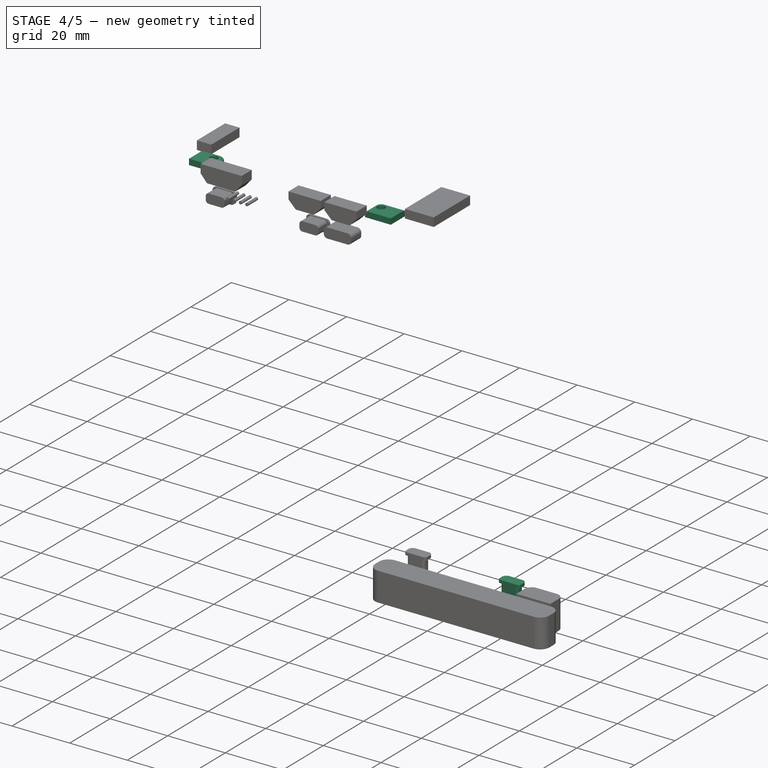
[diagram: stage 4 of 5 — iso view after this stage's code; geometry added in this stage tinted green]
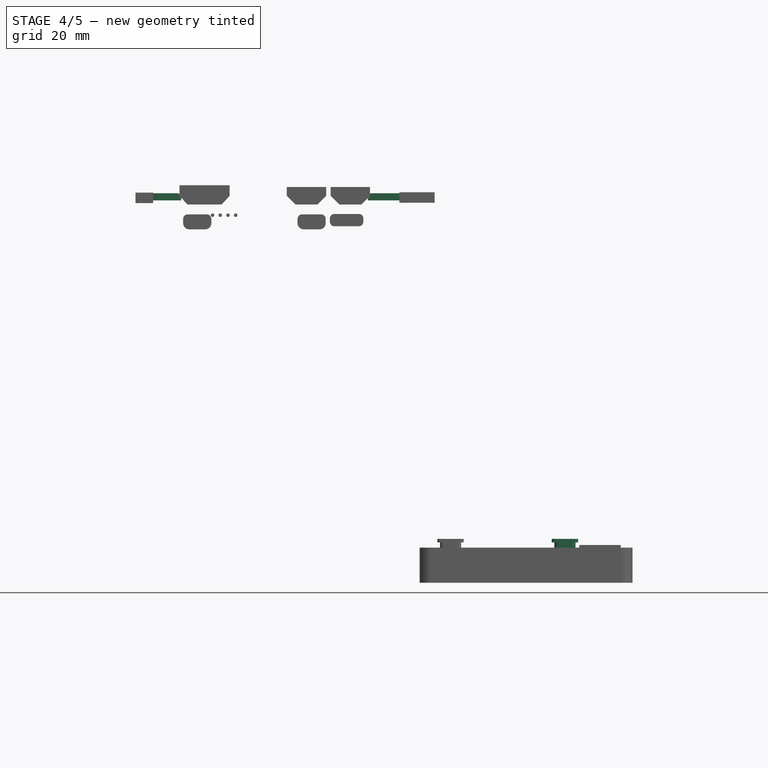
[diagram: stage 4 of 5 — front view after this stage's code; geometry added in this stage tinted green]
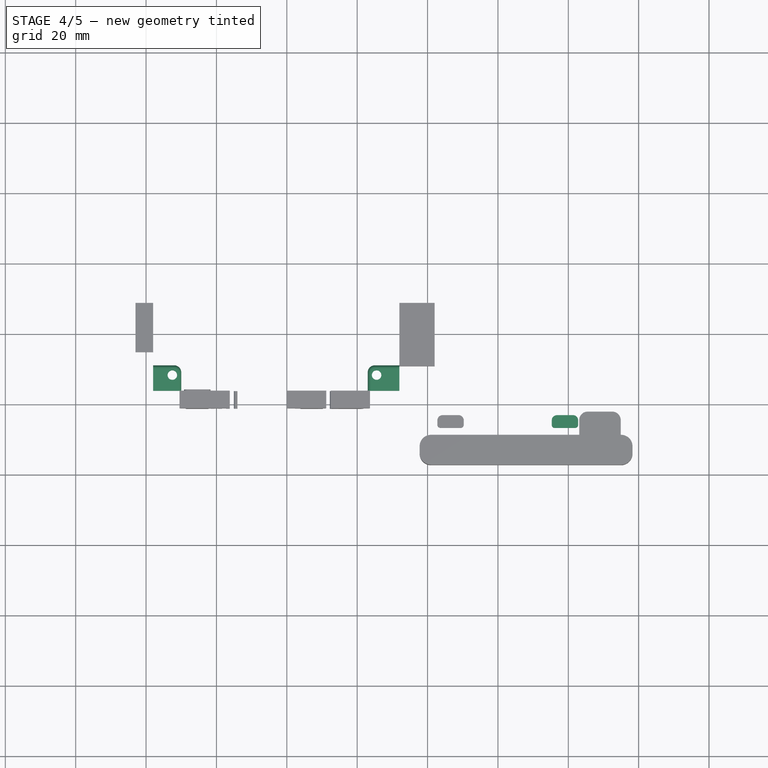
[diagram: stage 4 of 5 — top view after this stage's code; geometry added in this stage tinted green]
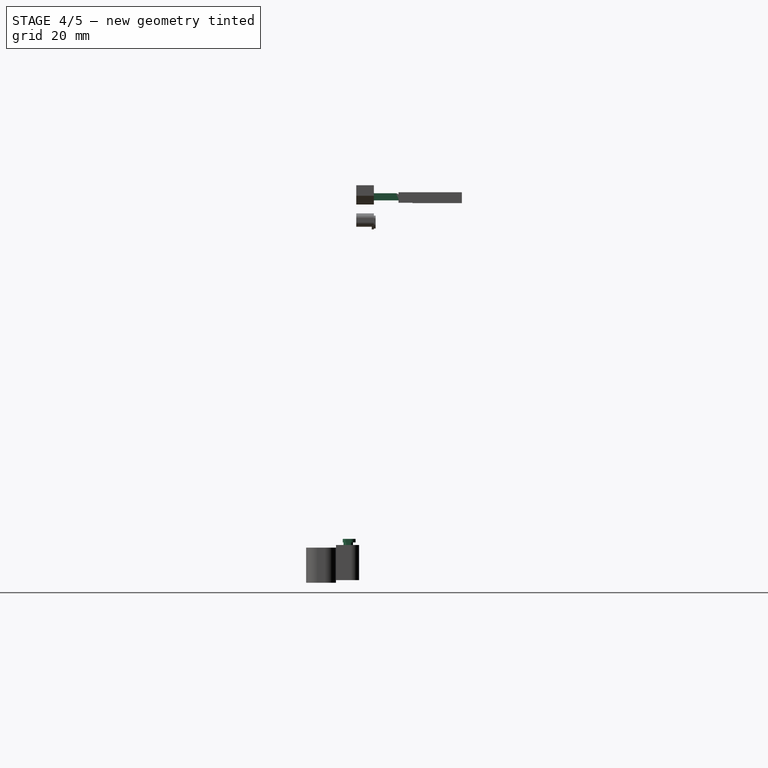
[diagram: stage 4 of 5 — right view after this stage's code; geometry added in this stage tinted green]
FEATURE [Part::Feature] Part__Feature061  label="CAPC-0805-T0.95-BN v004"
  Placement = pos=(-5.48627,2.66154,1.6) rot=(0,0,-1;1.5708rad)
  shape: bbox 1.35 x 2.1 x 0.95 mm, 42 faces (baked)
FEATURE [Part::Feature] Part__Feature062  label="CAPC-0805-T0.95-BN v005"
  Placement = pos=(-3.43627,2.66154,1.6) rot=(0,0,-1;1.5708rad)
  shape: bbox 1.35 x 2.1 x 0.95 mm, 42 faces (baked)
FEATURE [Part::Feature] Part__Feature063  label="CAPC-0603-T0.9-BN v002"
  Placement = pos=(-1.69987,-3.28475,1.6) rot=(0,0,1;0rad)
  shape: bbox 1.7 x 0.9 x 0.9 mm, 42 faces (baked)
FEATURE [Part::Feature] Part__Feature064  label="BODY_MF06A001"
  Placement = pos=(0,0,0.762) rot=(0.57735,-0.57735,-0.57735;2.0944rad)
  shape: bbox 1.601 x 2.921 x 1.016 mm, 42 faces (baked)
FEATURE [Part::Feature] Part__Feature065  label="LEAD_MF06A006"
  Placement = pos=(-0.9652,-0.9525,0.1016) rot=(0.57735,-0.57735,-0.57735;2.0944rad)
  shape: bbox 0.6223 x 0.3749 x 0.8636 mm, 14 faces (baked)
FEATURE [Part::Feature] Part__Feature066  label="LEAD_MF06A007"
  Placement = pos=(-0.9652,0,0.1016) rot=(0.57735,-0.57735,-0.57735;2.0944rad)
  shape: bbox 0.6223 x 0.3749 x 0.8636 mm, 14 faces (baked)
FEATURE [Part::Feature] Part__Feature067  label="LEAD_MF06A008"
  Placement = pos=(-0.9652,0.9525,0.1016) rot=(0.57735,-0.57735,-0.57735;2.0944rad)
  shape: bbox 0.6223 x 0.3749 x 0.8636 mm, 14 faces (baked)
FEATURE [Part::Feature] Part__Feature068  label="LEAD_MF06A009"
  Placement = pos=(0.9652,-0.9525,0.1016) rot=(0.57735,0.57735,0.57735;2.0944rad)
  shape: bbox 0.6223 x 0.3749 x 0.8636 mm, 14 faces (baked)
FEATURE [Part::Feature] Part__Feature069  label="LEAD_MF06A010"
  Placement = pos=(0.9652,0,0.1016) rot=(0.57735,0.57735,0.57735;2.0944rad)
  shape: bbox 0.6223 x 0.3749 x 0.8636 mm, 14 faces (baked)
FEATURE [Part::Feature] Part__Feature070  label="LEAD_MF06A011"
  Placement = pos=(0.9652,0.9525,0.1016) rot=(0.57735,0.57735,0.57735;2.0944rad)
  shape: bbox 0.6223 x 0.3749 x 0.8636 mm, 14 faces (baked)
FEATURE [Part::Feature] Part__Feature071  label="SOT363 v003"
  Placement = pos=(4.97054,-0.645171,1.675) rot=(0,0,1;3.14159rad)
  shape: bbox 2.1 x 2 x 1.1 mm, 94 faces, 7 solids (baked)
FEATURE [Part::Feature] Part__Feature072  label="LED 0603 single color v002"
  Placement = pos=(-9.18406,3.72778,1.60762) rot=(0,0,1;1.5708rad)
  shape: bbox 1.961 x 0.7932 x 0.7145 mm, 63 faces, 5 solids (baked)
FEATURE [Part::Feature] Part__Feature073  label="RESC-0603 v003"
  Placement = pos=(4.83432,-3.67461,1.6) rot=(0,0,1;0rad)
  shape: bbox 1.7 x 0.9 x 0.55 mm, 52 faces, 3 solids (baked)
FEATURE [Part::Feature] Part__Feature074  label="RESC-0603 v004"
  Placement = pos=(-7.14949,3.61248,1.6) rot=(0,0,-1;1.5708rad)
  shape: bbox 0.9 x 1.7 x 0.55 mm, 52 faces, 3 solids (baked)
FEATURE [Part::Feature] Part__Feature075  label="Printed Circuit Board001"
  shape: bbox 25.4 x 17.78 x 1.6 mm, 42 faces (baked)
FEATURE [Part::Feature] Part__Feature076  label="EAHC2835WD007"
  shape: bbox 3.513 x 2.813 x 0.7485 mm, 108 faces, 4 solids (baked)
FEATURE [Part::Feature] Part__Feature077  label="AS7341 v003"
  Placement = pos=(0,-0.339822,1.6) rot=(0,0,1;0rad)
  shape: bbox 2 x 3.1 x 1.1 mm, 267 faces, 26 solids (baked)
FEATURE [Part::Feature] Part__Feature078  label="CAPC-0805-T0.95-BN v006"
  Placement = pos=(-5.01759,-3.15294,1.6) rot=(0,0,1;0rad)
  shape: bbox 2.1 x 1.35 x 0.95 mm, 42 faces (baked)
FEATURE [Part::Feature] Part__Feature079  label="YC164_RESPACK v002"
  Placement = pos=(2.99591,1.52916,1.6) rot=(0,0,1;0rad)
  shape: bbox 3.2 x 1.6 x 0.61 mm, 172 faces (baked)
FEATURE [Part::Feature] Part__Feature080  label="qwicc v004"
  Placement = pos=(-10.8364,0.0607456,1.65) rot=(0,0,-1;1.5708rad)
  shape: bbox 4.95 x 6 x 2.96 mm, 229 faces, 7 solids (baked)
FEATURE [Part::Feature] Part__Feature081  label="qwicc v005"
  Placement = pos=(10.8256,0.00556102,1.65) rot=(0,0,1;1.5708rad)
  shape: bbox 4.95 x 6 x 2.96 mm, 229 faces, 7 solids (baked)
FEATURE [App::Part] sot_23_6_v003  label="sot-23-6 v003"
  Group = -> [Part__Feature064,Part__Feature065,Part__Feature066,Part__Feature067,Part__Feature068,Part__Feature069,Part__Feature070]
  Origin = -> Origin011
  Placement = pos=(-4.47945,-0.603742,1.69152) rot=(0,0,1;0rad)
FEATURE [App::Part] Adafruit_AS7341_STEMMA_QT_v003  label="TMP 117"
  Group = -> [Part__Feature075,Part__Feature076,Part__Feature077,Part__Feature078,Part__Feature061,Part__Feature062,Part__Feature063,sot_23_6_v003,Part__Feature071,Part__Feature072,Part__Feature073,Part__Feature074,Part__Feature079,Part__Feature080,Part__Feature081]
  Origin = -> Origin012
  Placement = pos=(225.25,-10,30) rot=(0.57735,0.57735,-0.57735;2.0944rad)
FEATURE [Part::Feature] Part__Feature082  label="Printed Circuit Board002"
  shape: bbox 25.4 x 22.86 x 1.65 mm, 56 faces (baked)
FEATURE [Part::Feature] Part__Feature083  label="BNO055-9axis-IMU v2"
  shape: bbox 5.2 x 3.8 x 1.18 mm, 330 faces, 31 solids (baked)
FEATURE [Part::Feature] Part__Feature084  label="BNO085-9axis-IMU v1"
  Placement = pos=(0.0397428,0.834599,1.65) rot=(0,0,1;0rad)
  shape: bbox 5.2 x 3.8 x 1.18 mm, 330 faces, 31 solids (baked)
FEATURE [Part::Feature] Part__Feature085  label="BODY-TSSOP"
  Placement = pos=(0,0,0.68) rot=(1,0,0;1.5708rad)
  shape: bbox 4.4 x 5 x 1 mm, 44 faces (baked)
FEATURE [Part::Feature] Part__Feature086  label="LEAD-TSSOP"
  Placement = pos=(-2.575,2.275,0.25) rot=(0.57735,-0.57735,-0.57735;2.0944rad)
  shape: bbox 1 x 0.245 x 0.68 mm, 14 faces (baked)
FEATURE [Part::Feature] Part__Feature087  label="LEAD-TSSOP001"
  Placement = pos=(-2.575,1.625,0.25) rot=(0.57735,-0.57735,-0.57735;2.0944rad)
  shape: bbox 1 x 0.245 x 0.68 mm, 14 faces (baked)
FEATURE [Part::Feature] Part__Feature088  label="LEAD-TSSOP002"
  Placement = pos=(-2.575,0.975,0.25) rot=(0.57735,-0.57735,-0.57735;2.0944rad)
  shape: bbox 1 x 0.245 x 0.68 mm, 14 faces (baked)
FEATURE [Part::Feature] Part__Feature089  label="LEAD-TSSOP003"
  Placement = pos=(-2.575,0.325,0.25) rot=(0.57735,-0.57735,-0.57735;2.0944rad)
  shape: bbox 1 x 0.245 x 0.68 mm, 14 faces (baked)
FEATURE [Part::Feature] Part__Feature090  label="LEAD-TSSOP004"
  Placement = pos=(-2.575,-0.325,0.25) rot=(0.57735,-0.57735,-0.57735;2.0944rad)
  shape: bbox 1 x 0.245 x 0.68 mm, 14 faces (baked)
FEATURE [Part::Feature] Part__Feature091  label="LEAD-TSSOP005"
  Placement = pos=(-2.575,-0.975,0.25) rot=(0.57735,-0.57735,-0.57735;2.0944rad)
  shape: bbox 1 x 0.245 x 0.68 mm, 14 faces (baked)
FEATURE [Part::Feature] Part__Feature092  label="LEAD-TSSOP006"
  Placement = pos=(-2.575,-1.625,0.25) rot=(0.57735,-0.57735,-0.57735;2.0944rad)
  shape: bbox 1 x 0.245 x 0.68 mm, 14 faces (baked)
FEATURE [Part::Feature] Part__Feature093  label="LEAD-TSSOP007"
  Placement = pos=(-2.575,-2.275,0.25) rot=(0.57735,-0.57735,-0.57735;2.0944rad)
  shape: bbox 1 x 0.245 x 0.68 mm, 14 faces (baked)
FEATURE [Part::Feature] Part__Feature094  label="LEAD-TSSOP008"
  Placement = pos=(2.575,-2.275,0.25) rot=(0.57735,0.57735,0.57735;2.0944rad)
  shape: bbox 1 x 0.245 x 0.68 mm, 14 faces (baked)
FEATURE [Part::Feature] Part__Feature095  label="LEAD-TSSOP009"
  Placement = pos=(2.575,-1.625,0.25) rot=(0.57735,0.57735,0.57735;2.0944rad)
  shape: bbox 1 x 0.245 x 0.68 mm, 14 faces (baked)
FEATURE [Part::Feature] Part__Feature096  label="LEAD-TSSOP010"
  Placement = pos=(2.575,-0.975,0.25) rot=(0.57735,0.57735,0.57735;2.0944rad)
  shape: bbox 1 x 0.245 x 0.68 mm, 14 faces (baked)
FEATURE [Part::Feature] Part__Feature097  label="LEAD-TSSOP011"
  Placement = pos=(2.575,-0.325,0.25) rot=(0.57735,0.57735,0.57735;2.0944rad)
  shape: bbox 1 x 0.245 x 0.68 mm, 14 faces (baked)
FEATURE [Part::Feature] Part__Feature098  label="LEAD-TSSOP012"
  Placement = pos=(2.575,0.325,0.25) rot=(0.57735,0.57735,0.57735;2.0944rad)
  shape: bbox 1 x 0.245 x 0.68 mm, 14 faces (baked)
FEATURE [Part::Feature] Part__Feature099  label="LEAD-TSSOP013"
  Placement = pos=(2.575,0.975,0.25) rot=(0.57735,0.57735,0.57735;2.0944rad)
  shape: bbox 1 x 0.245 x 0.68 mm, 14 faces (baked)
FEATURE [Part::Feature] Part__Feature100  label="LEAD-TSSOP014"
  Placement = pos=(2.575,1.625,0.25) rot=(0.57735,0.57735,0.57735;2.0944rad)
  shape: bbox 1 x 0.245 x 0.68 mm, 14 faces (baked)
FEATURE [Part::Feature] Part__Feature101  label="LEAD-TSSOP015"
  Placement = pos=(2.575,2.275,0.25) rot=(0.57735,0.57735,0.57735;2.0944rad)
  shape: bbox 1 x 0.245 x 0.68 mm, 14 faces (baked)
FEATURE [App::Part] CD74HC4050PW_v2  label="CD74HC4050PW v2"
  Group = -> [Part__Feature085,Part__Feature086,Part__Feature087,Part__Feature088,Part__Feature089,Part__Feature090,Part__Feature091,Part__Feature092,Part__Feature093,Part__Feature094,Part__Feature095,Part__Feature096,Part__Feature097,Part__Feature098,Part__Feature099,Part__Feature100,Part__Feature101]
  Origin = -> Origin013
  Placement = pos=(-0.480857,-4.04007,1.65) rot=(0,0,1;0rad)
FEATURE [Part::Feature] Part__Feature102  label="Crystal_XTAL3215_32.768KHz v2"
  Placement = pos=(-1.27195,4.88696,1.65) rot=(0,0,1;0rad)
  shape: bbox 3.2 x 1.5 x 0.9 mm, 68 faces, 4 solids (baked)
FEATURE [Part::Feature] Part__Feature103  label="SOT23-5 v1"
  Placement = pos=(-6.713,-5.17721,1.62965) rot=(0,0,1;3.14159rad)
  shape: bbox 2.839 x 3.004 x 1.189 mm, 69 faces, 6 solids (baked)
FEATURE [Part::Feature] Part__Feature104  label="BSS138PS v2"
  Placement = pos=(8.84171,4.56758,1.725) rot=(0,0,1;1.5708rad)
  shape: bbox 2 x 2.1 x 1.1 mm, 94 faces, 7 solids (baked)
FEATURE [Part::Feature] Part__Feature105  label="LED 0603 single color v003"
  Placement = pos=(-11.1101,4.07892,1.65762) rot=(0,0,1;1.5708rad)
  shape: bbox 1.961 x 0.7932 x 0.7145 mm, 63 faces, 5 solids (baked)
FEATURE [Part::Feature] Part__Feature106  label="CAPC-0805-T0.95-BN v007"
  Placement = pos=(-5.76735,-1.60636,1.65) rot=(0,0,1;1.5708rad)
  shape: bbox 1.35 x 2.1 x 0.95 mm, 42 faces (baked)
FEATURE [Part::Feature] Part__Feature107  label="CAPC-0805-T0.95-BN v008"
  Placement = pos=(-9.58996,-4.86923,1.65) rot=(0,0,1;1.5708rad)
  shape: bbox 1.35 x 2.1 x 0.95 mm, 42 faces (baked)
FEATURE [Part::Feature] Part__Feature108  label="CAPC-0603-T0.9-BN v003"
  Placement = pos=(-3.91817,4.74576,1.65) rot=(0,0,-1;1.5708rad)
  shape: bbox 0.9 x 1.7 x 0.9 mm, 42 faces (baked)
FEATURE [Part::Feature] Part__Feature109  label="CAPC-0603-T0.9-BN v004"
  Placement = pos=(1.38535,4.40519,1.65) rot=(0,0,-1;1.5708rad)
  shape: bbox 0.9 x 1.7 x 0.9 mm, 42 faces (baked)
FEATURE [Part::Feature] Part__Feature110  label="CAPC-0603-T0.9-BN v005"
  Placement = pos=(11.4254,5.18954,1.65) rot=(0,0,-1;1.5708rad)
  shape: bbox 0.9 x 1.7 x 0.9 mm, 42 faces (baked)
FEATURE [Part::Feature] Part__Feature111  label="CAPC-0603-T0.9-BN v006"
  Placement = pos=(-5.1728,2.29973,1.65) rot=(0,0,1;0rad)
  shape: bbox 1.7 x 0.9 x 0.9 mm, 42 faces (baked)
FEATURE [Part::Feature] Part__Feature112  label="CAPC-0603-T0.9-BN v007"
  Placement = pos=(-5.03492,0.984521,1.65) rot=(0,0,1;0rad)
  shape: bbox 1.7 x 0.9 x 0.9 mm, 42 faces (baked)
FEATURE [Part::Feature] Part__Feature113  label="YC164_RESPACK v003"
  Placement = pos=(-4.85646,5.94433,1.65) rot=(0,0,1;3.14159rad)
  shape: bbox 3.2 x 1.6 x 0.61 mm, 172 faces (baked)
FEATURE [Part::Feature] Part__Feature114  label="YC164_RESPACK v004"
  Placement = pos=(3.72877,3.34539,1.65) rot=(0,0,1;0rad)
  shape: bbox 3.2 x 1.6 x 0.61 mm, 172 faces (baked)
FEATURE [Part::Feature] Part__Feature115  label="YC164_RESPACK v005"
  Placement = pos=(4.16527,1.97253,1.65) rot=(0,0,-1;1.5708rad)
  shape: bbox 1.6 x 3.2 x 0.61 mm, 172 faces (baked)
FEATURE [Part::Feature] Part__Feature116  label="qwicc v1"
  Placement = pos=(-8.45735,0.0215083,1.345) rot=(0.57735,-0.57735,-0.57735;2.0944rad)
  shape: bbox 4.95 x 6 x 2.96 mm, 229 faces, 7 solids (baked)
FEATURE [Part::Feature] Part__Feature117  label="qwicc v006"
  Placement = pos=(8.46074,0.018239,1.345) rot=(0.57735,0.57735,0.57735;2.0944rad)
  shape: bbox 4.95 x 6 x 2.96 mm, 229 faces, 7 solids (baked)
FEATURE [App::Part] Adafruit_BNO085_STEMMA_QT_v2  label="BNO085"
  Group = -> [Part__Feature082,Part__Feature083,Part__Feature084,CD74HC4050PW_v2,Part__Feature102,Part__Feature103,Part__Feature104,Part__Feature105,Part__Feature106,Part__Feature107,Part__Feature108,Part__Feature109,Part__Feature110,Part__Feature111,Part__Feature112,Part__Feature113,Part__Feature114,Part__Feature115,Part__Feature116,Part__Feature117]
  Origin = -> Origin014
  Placement = pos=(217,-24.7,66) rot=(0,0,-1;1.5708rad)
FEATURE [Part::Feature] Part__Feature334  label="CAPC-0805-T0.95-BN v012"
  Placement = pos=(-5.48627,2.66154,1.6) rot=(0,0,-1;1.5708rad)
  shape: bbox 1.35 x 2.1 x 0.95 mm, 42 faces (baked)
FEATURE [Part::Feature] Part__Feature335  label="CAPC-0805-T0.95-BN v013"
  Placement = pos=(-3.43627,2.66154,1.6) rot=(0,0,-1;1.5708rad)
  shape: bbox 1.35 x 2.1 x 0.95 mm, 42 faces (baked)
FEATURE [Part::Feature] Part__Feature336  label="CAPC-0603-T0.9-BN v009"
  Placement = pos=(-1.69987,-3.28475,1.6) rot=(0,0,1;0rad)
  shape: bbox 1.7 x 0.9 x 0.9 mm, 42 faces (baked)
FEATURE [Part::Feature] Part__Feature337  label="BODY_MF06A003"
  Placement = pos=(0,0,0.762) rot=(0.57735,-0.57735,-0.57735;2.0944rad)
  shape: bbox 1.601 x 2.921 x 1.016 mm, 42 faces (baked)
FEATURE [Part::Feature] Part__Feature338  label="LEAD_MF06A018"
  Placement = pos=(-0.9652,-0.9525,0.1016) rot=(0.57735,-0.57735,-0.57735;2.0944rad)
  shape: bbox 0.6223 x 0.3749 x 0.8636 mm, 14 faces (baked)
FEATURE [Part::Feature] Part__Feature339  label="LEAD_MF06A019"
  Placement = pos=(-0.9652,0,0.1016) rot=(0.57735,-0.57735,-0.57735;2.0944rad)
  shape: bbox 0.6223 x 0.3749 x 0.8636 mm, 14 faces (baked)
FEATURE [Part::Feature] Part__Feature340  label="LEAD_MF06A020"
  Placement = pos=(-0.9652,0.9525,0.1016) rot=(0.57735,-0.57735,-0.57735;2.0944rad)
  shape: bbox 0.6223 x 0.3749 x 0.8636 mm, 14 faces (baked)
FEATURE [Part::Feature] Part__Feature341  label="LEAD_MF06A021"
  Placement = pos=(0.9652,-0.9525,0.1016) rot=(0.57735,0.57735,0.57735;2.0944rad)
  shape: bbox 0.6223 x 0.3749 x 0.8636 mm, 14 faces (baked)
FEATURE [Part::Feature] Part__Feature342  label="LEAD_MF06A022"
  Placement = pos=(0.9652,0,0.1016) rot=(0.57735,0.57735,0.57735;2.0944rad)
  shape: bbox 0.6223 x 0.3749 x 0.8636 mm, 14 faces (baked)
FEATURE [Part::Feature] Part__Feature343  label="LEAD_MF06A023"
  Placement = pos=(0.9652,0.9525,0.1016) rot=(0.57735,0.57735,0.57735;2.0944rad)
  shape: bbox 0.6223 x 0.3749 x 0.8636 mm, 14 faces (baked)
FEATURE [Part::Feature] Part__Feature344  label="SOT363 v005"
  Placement = pos=(4.97054,-0.645171,1.675) rot=(0,0,1;3.14159rad)
  shape: bbox 2.1 x 2 x 1.1 mm, 94 faces, 7 solids (baked)
FEATURE [Part::Feature] Part__Feature345  label="LED 0603 single color v005"
  Placement = pos=(-9.18406,3.72778,1.60762) rot=(0,0,1;1.5708rad)
  shape: bbox 1.961 x 0.7932 x 0.7145 mm, 63 faces, 5 solids (baked)
FEATURE [Part::Feature] Part__Feature346  label="RESC-0603 v007"
  Placement = pos=(4.83432,-3.67461,1.6) rot=(0,0,1;0rad)
  shape: bbox 1.7 x 0.9 x 0.55 mm, 52 faces, 3 solids (baked)
FEATURE [Part::Feature] Part__Feature347  label="RESC-0603 v008"
  Placement = pos=(-7.14949,3.61248,1.6) rot=(0,0,-1;1.5708rad)
  shape: bbox 0.9 x 1.7 x 0.55 mm, 52 faces, 3 solids (baked)
FEATURE [Part::Feature] Part__Feature348  label="Printed Circuit Board004"
  shape: bbox 25.4 x 17.78 x 1.6 mm, 42 faces (baked)
FEATURE [Part::Feature] Part__Feature349  label="EAHC2835WD009"
  shape: bbox 3.513 x 2.813 x 0.7485 mm, 108 faces, 4 solids (baked)
FEATURE [Part::Feature] Part__Feature350  label="AS7341 v005"
  Placement = pos=(0,-0.339822,1.6) rot=(0,0,1;0rad)
  shape: bbox 2 x 3.1 x 1.1 mm, 267 faces, 26 solids (baked)
FEATURE [Part::Feature] Part__Feature351  label="CAPC-0805-T0.95-BN v014"
  Placement = pos=(-5.01759,-3.15294,1.6) rot=(0,0,1;0rad)
  shape: bbox 2.1 x 1.35 x 0.95 mm, 42 faces (baked)
FEATURE [Part::Feature] Part__Feature352  label="YC164_RESPACK v007"
  Placement = pos=(2.99591,1.52916,1.6) rot=(0,0,1;0rad)
  shape: bbox 3.2 x 1.6 x 0.61 mm, 172 faces (baked)
FEATURE [Part::Feature] Part__Feature353  label="qwicc v009"
  Placement = pos=(-10.8364,0.0607456,1.65) rot=(0,0,-1;1.5708rad)
  shape: bbox 4.95 x 6 x 2.96 mm, 229 faces, 7 solids (baked)
FEATURE [Part::Feature] Part__Feature354  label="qwicc v010"
  Placement = pos=(10.8256,0.00556102,1.65) rot=(0,0,1;1.5708rad)
  shape: bbox 4.95 x 6 x 2.96 mm, 229 faces, 7 solids (baked)
FEATURE [App::Part] sot_23_6_v005  label="sot-23-6 v005"
  Group = -> [Part__Feature337,Part__Feature338,Part__Feature339,Part__Feature340,Part__Feature341,Part__Feature342,Part__Feature343]
  Origin = -> Origin019
  Placement = pos=(-4.47945,-0.603742,1.69152) rot=(0,0,1;0rad)
FEATURE [App::Part] Adafruit_AS7341_STEMMA_QT_v005  label="bme280"
  Group = -> [Part__Feature348,Part__Feature349,Part__Feature350,Part__Feature351,Part__Feature334,Part__Feature335,Part__Feature336,sot_23_6_v005,Part__Feature344,Part__Feature345,Part__Feature346,Part__Feature347,Part__Feature352,Part__Feature353,Part__Feature354]
  Origin = -> Origin020
  Placement = pos=(180,-10,30) rot=(0.57735,0.57735,-0.57735;2.0944rad)
FEATURE [Part::Feature] Part__Feature324  label="CL-SA_s_C003"
  Placement = pos=(-0.8,0,-1e-15) rot=(0,0,1;0rad)
  shape: bbox 8.3 x 3.1 x 2.4 mm, 31 faces (baked)
FEATURE [Part::Feature] Part__Feature325  label="CL-SA_c_C003"
  Placement = pos=(0,-4.5,-1e-15) rot=(0,0,1;0rad)
  shape: bbox 10 x 10 x 2.54 mm, 56 faces (baked)
FEATURE [App::Part] CL_SA_12C_023  label="switch"
  Group = -> [Part__Feature324,Part__Feature325]
  Origin = -> Origin017
  Placement = pos=(146.73,-9.8,-80.2) rot=(0.57735,-0.57735,0.57735;4.18879rad)
FEATURE [Part::Feature] Part__Feature333  label="RaspberryPiZeroW001"
  Placement = pos=(36.5,18,19.18) rot=(1,0,0;1.5708rad)
  shape: bbox 65.9 x 31.25 x 4.8 mm, 368 faces, 2 solids (baked)
FEATURE [Sketcher::SketchObject] Sketch014
  ArcFitTolerance = 0
  FullyConstrained = true
  MakeInternals = false
  Placement = pos=(0,0,0) rot=(1,0,0;1.5708rad)
  sketch-geometry (8):
    g0: ArcOfCircle CenterX=12.75 CenterY=15.33 CenterZ=0 NormalX=0 NormalY=0 NormalZ=1 AngleXU=0 Radius=0.9 StartAngle=1.5708 EndAngle=3.14159
    g1: ArcOfCircle CenterX=16.95 CenterY=15.33 CenterZ=0 NormalX=0 NormalY=0 NormalZ=1 AngleXU=0 Radius=0.9 StartAngle=8e-16 EndAngle=1.5708
    g2: ArcOfCircle CenterX=16.95 CenterY=14.43 CenterZ=0 NormalX=0 NormalY=0 NormalZ=1 AngleXU=0 Radius=0.9 StartAngle=4.71239 EndAngle=6.28319
    g3: ArcOfCircle CenterX=12.75 CenterY=14.43 CenterZ=0 NormalX=0 NormalY=0 NormalZ=1 AngleXU=0 Radius=0.9 StartAngle=3.14159 EndAngle=4.71239
    g4: LineSegment StartX=12.75 StartY=16.23 StartZ=0 EndX=16.95 EndY=16.23 EndZ=0
    g5: LineSegment StartX=17.85 StartY=15.33 StartZ=0 EndX=17.85 EndY=14.43 EndZ=0
    g6: LineSegment StartX=16.95 StartY=13.53 StartZ=0 EndX=12.75 EndY=13.53 EndZ=0
    g7: LineSegment StartX=11.85 StartY=14.43 StartZ=0 EndX=11.85 EndY=15.33 EndZ=0
  constraints (28):
    c: Coincident(g4,g0)
    c: Coincident(g4,g1)
    c: Horizontal(g4)
    c: Coincident(g5,g1)
    c: Coincident(g5,g2)
    c: Coincident(g6,g2)
    c: Coincident(g6,g3)
    c: Horizontal(g6)
    c: Coincident(g7,g3)
    c: Coincident(g7,g0)
    c: Vertical(g7)
    c: Radius(g0) = 0.9
    c: DistanceY(g0,g0) = 0
    c: Angle(g3) = 1.5708
    c: DistanceY(g3,g3) = 0
    c: DistanceY(g3,g0) = 0.9
    c: DistanceY(g3) = 14.43
    c: Radius(g3) = 0.9
    c: Radius(g2) = 0.9
    c: Radius(g1) = 0.9
    c: DistanceX(g6,g6) = 4.2
    c: DistanceX(g3) = 12.75
    c: DistanceY(g1,g1) = 0
    c: DistanceX(g2,g2) = 0
    c: Angle(g1) = 1.5708
    c: Angle(g2) = 1.5708
    c: Vertical(g5)
    c: DistanceX(g0,g0) = 0
FEATURE [Part::Extrusion] Extrude014
  Base = -> Sketch014
  Dir = (0,-1,2e-16)
  DirMode = 2
  FaceMakerClass = Part::FaceMakerBullseye
  FaceMakerMode = 3
  LengthFwd = 5
  LengthRev = 0
  Placement = pos=(-0.3,2,-0.1) rot=(0,0,1;0rad)
  Solid = true
  Symmetric = false
FEATURE [Sketcher::SketchObject] Sketch015
  ArcFitTolerance = 0
  FullyConstrained = true
  MakeInternals = false
  Placement = pos=(0,0,0) rot=(1,0,0;1.5708rad)
  sketch-geometry (8):
    g0: ArcOfCircle CenterX=11.7 CenterY=15.45 CenterZ=0 NormalX=0 NormalY=0 NormalZ=1 AngleXU=0 Radius=0.9 StartAngle=1.5708 EndAngle=3.14159
    g1: ArcOfCircle CenterX=17.4 CenterY=15.45 CenterZ=0 NormalX=0 NormalY=0 NormalZ=1 AngleXU=0 Radius=0.9 StartAngle=4e-16 EndAngle=1.5708
    g2: ArcOfCircle CenterX=16.8 CenterY=14.2 CenterZ=0 NormalX=0 NormalY=0 NormalZ=1 AngleXU=0 Radius=1.5 StartAngle=4.71239 EndAngle=6.28319
    g3: ArcOfCircle CenterX=12.3 CenterY=14.2 CenterZ=0 NormalX=0 NormalY=0 NormalZ=1 AngleXU=0 Radius=1.5 StartAngle=3.14159 EndAngle=4.71239
    g4: LineSegment StartX=11.7 StartY=16.35 StartZ=0 EndX=17.4 EndY=16.35 EndZ=0
    g5: LineSegment StartX=18.3 StartY=15.45 StartZ=0 EndX=18.3 EndY=14.2 EndZ=0
    g6: LineSegment StartX=16.8 StartY=12.7 StartZ=0 EndX=12.3 EndY=12.7 EndZ=0
    g7: LineSegment StartX=10.8 StartY=14.2 StartZ=0 EndX=10.8 EndY=15.45 EndZ=0
  constraints (28):
    c: Coincident(g4,g0)
    c: Coincident(g4,g1)
    c: Horizontal(g4)
    c: Coincident(g5,g1)
    c: Coincident(g5,g2)
    c: Coincident(g6,g2)
    c: Coincident(g6,g3)
    c: Horizontal(g6)
    c: Coincident(g7,g3)
    c: Coincident(g7,g0)
    c: Vertical(g7)
    c: Radius(g0) = 0.9
    c: DistanceY(g0,g0) = 0
    c: Angle(g3) = 1.5708
    c: DistanceY(g3,g3) = 0
    c: DistanceY(g3,g0) = 1.25
    c: DistanceY(g3) = 14.2
    c: Radius(g3) = 1.5
    c: Radius(g2) = 1.5
    c: Radius(g1) = 0.9
    c: DistanceX(g6,g6) = 4.5
    c: DistanceX(g3) = 12.3
    c: DistanceY(g1,g1) = 0
    c: DistanceX(g2,g2) = 0
    c: Angle(g1) = 1.5708
    c: Angle(g2) = 1.5708
    c: Vertical(g5)
    c: DistanceX(g0,g0) = 0
FEATURE [Part::Extrusion] Extrude015
  Base = -> Sketch015
  Dir = (0,-1,2e-16)
  DirMode = 2
  FaceMakerClass = Part::FaceMakerBullseye
  FaceMakerMode = 3
  LengthFwd = 1
  LengthRev = 0
  Placement = pos=(0,2.5,0) rot=(0,0,1;0rad)
  Solid = true
  Symmetric = false
FEATURE [Part::MultiFuse] Fusion018  label="button1"
  Placement = pos=(104.5,9.5,-78) rot=(1,0,0;1.5708rad)
  Shapes = -> [Extrude014,Extrude015]
FEATURE [Sketcher::SketchObject] Sketch183
  ArcFitTolerance = 0
  FullyConstrained = true
  MakeInternals = false
  Placement = pos=(0,0,0) rot=(1,0,0;1.5708rad)
  sketch-geometry (46):
    g0: LineSegment StartX=11.75 StartY=19.5 StartZ=0 EndX=21.5 EndY=19.5 EndZ=0
    g1: LineSegment StartX=21.5 StartY=19.5 StartZ=0 EndX=23.75 EndY=22 EndZ=0
    g2: LineSegment StartX=23.75 StartY=22 StartZ=0 EndX=23.75 EndY=25 EndZ=0
    g3: LineSegment StartX=23.75 StartY=25 StartZ=0 EndX=9.5 EndY=25 EndZ=0
    g4: LineSegment StartX=9.5 StartY=25 StartZ=0 EndX=9.5 EndY=22 EndZ=0
    g5: LineSegment StartX=40 StartY=24.5 StartZ=0 EndX=40 EndY=22 EndZ=0
    g6: LineSegment StartX=40 StartY=22 StartZ=0 EndX=42.5 EndY=19.5 EndZ=0
    g7: LineSegment StartX=42.5 StartY=19.5 StartZ=0 EndX=48.7 EndY=19.5 EndZ=0
    g8: LineSegment StartX=48.7 StartY=19.5 StartZ=0 EndX=51.2 EndY=22 EndZ=0
    g9: LineSegment StartX=51.2 StartY=22 StartZ=0 EndX=51.2 EndY=24.5 EndZ=0
    g10: LineSegment StartX=51.2 StartY=24.5 StartZ=0 EndX=40 EndY=24.5 EndZ=0
    g11: LineSegment StartX=52.45 StartY=24.5 StartZ=0 EndX=52.45 EndY=22 EndZ=0
    g12: LineSegment StartX=52.45 StartY=22 StartZ=0 EndX=54.95 EndY=19.5 EndZ=0
    g13: LineSegment StartX=54.95 StartY=19.5 StartZ=0 EndX=61.15 EndY=19.5 EndZ=0
    g14: LineSegment StartX=61.15 StartY=19.5 StartZ=0 EndX=63.65 EndY=22 EndZ=0
    g15: LineSegment StartX=63.65 StartY=22 StartZ=0 EndX=63.65 EndY=24.5 EndZ=0
    g16: LineSegment StartX=63.65 StartY=24.5 StartZ=0 EndX=52.45 EndY=24.5 EndZ=0
    g17: LineSegment StartX=9.5 StartY=22 StartZ=0 EndX=11.75 EndY=19.5 EndZ=0
    g18: ArcOfCircle CenterX=12.3 CenterY=15.45 CenterZ=0 NormalX=0 NormalY=0 NormalZ=1 AngleXU=0 Radius=1 StartAngle=1.5708 EndAngle=3.14159
    g19: LineSegment StartX=11.3 StartY=15.45 StartZ=0 EndX=11.3 EndY=14.2 EndZ=0
    g20: LineSegment StartX=12.3 StartY=16.45 StartZ=0 EndX=16.8 EndY=16.45 EndZ=0
    g21: ArcOfCircle CenterX=16.8 CenterY=15.45 CenterZ=0 NormalX=0 NormalY=0 NormalZ=1 AngleXU=0 Radius=1 StartAngle=3e-16 EndAngle=1.5708
    g22: ArcOfCircle CenterX=16.8 CenterY=14.2 CenterZ=0 NormalX=0 NormalY=0 NormalZ=1 AngleXU=0 Radius=1 StartAngle=4.71239 EndAngle=6.28319
    g23: ArcOfCircle CenterX=12.3 CenterY=14.2 CenterZ=0 NormalX=0 NormalY=0 NormalZ=1 AngleXU=0 Radius=1 StartAngle=3.14159 EndAngle=4.71239
    g24: LineSegment StartX=12.3 StartY=13.2 StartZ=0 EndX=16.8 EndY=13.2 EndZ=0
    g25: LineSegment StartX=17.8 StartY=15.45 StartZ=0 EndX=17.8 EndY=14.2 EndZ=0
    g26: Circle CenterX=18.9 CenterY=16.475 CenterZ=0 NormalX=0 NormalY=0 NormalZ=1 AngleXU=0 Radius=0.5
    g27: Circle CenterX=21.09 CenterY=16.475 CenterZ=0 NormalX=0 NormalY=0 NormalZ=1 AngleXU=0 Radius=0.5
    g28: Circle CenterX=23.28 CenterY=16.475 CenterZ=0 NormalX=0 NormalY=0 NormalZ=1 AngleXU=0 Radius=0.5
    g29: Circle CenterX=25.47 CenterY=16.475 CenterZ=0 NormalX=0 NormalY=0 NormalZ=1 AngleXU=0 Radius=0.5
    g30: LineSegment StartX=44.8 StartY=16.45 StartZ=0 EndX=49.3 EndY=16.45 EndZ=0
    g31: LineSegment StartX=50.3 StartY=15.45 StartZ=0 EndX=50.3 EndY=14.2 EndZ=0
    g32: LineSegment StartX=49.3 StartY=13.2 StartZ=0 EndX=44.8 EndY=13.2 EndZ=0
    g33: LineSegment StartX=43.8 StartY=15.45 StartZ=0 EndX=43.8 EndY=14.2 EndZ=0
    g34: ArcOfCircle CenterX=44.8 CenterY=15.45 CenterZ=0 NormalX=0 NormalY=0 NormalZ=1 AngleXU=0 Radius=1 StartAngle=1.5708 EndAngle=3.14159
    g35: ArcOfCircle CenterX=49.3 CenterY=15.45 CenterZ=0 NormalX=0 NormalY=0 NormalZ=1 AngleXU=0 Radius=1 StartAngle=3e-16 EndAngle=1.5708
    g36: ArcOfCircle CenterX=49.3 CenterY=14.2 CenterZ=0 NormalX=0 NormalY=0 NormalZ=1 AngleXU=0 Radius=1 StartAngle=4.71239 EndAngle=6.28319
    g37: ArcOfCircle CenterX=44.8 CenterY=14.2 CenterZ=0 NormalX=0 NormalY=0 NormalZ=1 AngleXU=0 Radius=1 StartAngle=3.14159 EndAngle=4.71239
    g38: LineSegment StartX=52.25 StartY=15.58 StartZ=0 EndX=52.25 EndY=14.58 EndZ=0
    g39: LineSegment StartX=53.5 StartY=16.83 StartZ=0 EndX=60.5 EndY=16.83 EndZ=0
    g40: LineSegment StartX=53.5 StartY=13.33 StartZ=0 EndX=60.5 EndY=13.33 EndZ=0
    g41: LineSegment StartX=61.75 StartY=15.58 StartZ=0 EndX=61.75 EndY=14.58 EndZ=0
    g42: ArcOfCircle CenterX=53.5 CenterY=15.58 CenterZ=0 NormalX=0 NormalY=0 NormalZ=1 AngleXU=0 Radius=1.25 StartAngle=1.5708 EndAngle=3.14159
    g43: ArcOfCircle CenterX=60.5 CenterY=15.58 CenterZ=0 NormalX=0 NormalY=0 NormalZ=1 AngleXU=0 Radius=1.25 StartAngle=2e-16 EndAngle=1.5708
    g44: ArcOfCircle CenterX=60.5 CenterY=14.58 CenterZ=0 NormalX=0 NormalY=0 NormalZ=1 AngleXU=0 Radius=1.25 StartAngle=4.7124 EndAngle=6.28319
    g45: ArcOfCircle CenterX=53.5 CenterY=14.58 CenterZ=0 NormalX=0 NormalY=0 NormalZ=1 AngleXU=0 Radius=1.25 StartAngle=3.14159 EndAngle=4.71239
  constraints (150):
    c: Horizontal(g0)
    c: Coincident(g0,g1)
    c: Coincident(g1,g2)
    c: Coincident(g2,g3)
    c: Horizontal(g3)
    c: Coincident(g3,g4)
    c: Vertical(g4)
    c: Coincident(g5,g6)
    c: Coincident(g6,g7)
    c: Horizontal(g7)
    c: Coincident(g7,g8)
    c: Coincident(g8,g9)
    c: Vertical(g9)
    c: Coincident(g9,g10)
    c: Coincident(g10,g5)
    c: Coincident(g11,g12)
    c: Coincident(g12,g13)
    c: Horizontal(g13)
    c: Coincident(g13,g14)
    c: Coincident(g14,g15)
    c: Vertical(g15)
    c: Coincident(g15,g16)
    c: Coincident(g16,g11)
    c: Horizontal(g16)
    c: Coincident(g17,g4)
    c: Coincident(g0,g17)
    c: DistanceX(g3) = 9.5
    c: DistanceX(g3,g3) = 14.25
    c: Vertical(g2)
    c: DistanceY(g3) = 25
    c: DistanceY(g4) = 22
    c: DistanceY(g4,g1) = 0
    c: DistanceX(g4,g0) = 2.25
    c: DistanceX(g0,g1) = 2.25
    c: Horizontal(g10)
    c: Vertical(g5)
    c: Vertical(g11)
    c: DistanceX(g5) = 40
    c: DistanceX(g5,g9) = 11.2
    c: DistanceY(g11,g9) = 0
    c: DistanceY(g5,g5) = 2.5
    c: DistanceY(g8,g5) = 0
    c: DistanceY(g11,g8) = 0
    c: DistanceY(g14,g11) = 0
    c: DistanceY(g6,g5) = 2.5
    c: DistanceX(g5,g6) = 2.5
    c: DistanceX(g7,g8) = 2.5
    c: DistanceX(g9,g11) = 1.25
    c: DistanceY(g12,g7) = 0
    c: DistanceX(g11,g12) = 2.5
    c: DistanceX(g13,g14) = 2.5
    c: DistanceX(g11,g15) = 11.2
    c: DistanceY(g0,g4) = 2.5
    c: DistanceY(g5) = 24.5
    c: Coincident(g19,g18)
    c: Vertical(g19)
    c: Horizontal(g20)
    c: Coincident(g21,g20)
    c: Coincident(g23,g19)
    c: Coincident(g24,g23)
    c: Coincident(g24,g22)
    c: Horizontal(g24)
    c: Coincident(g25,g21)
    c: Coincident(g25,g22)
    c: Vertical(g25)
    c: Coincident(g18,g20)
    c: Radius(g18) = 1
    c: Angle(g18) = 1.5708
    c: Angle(g21) = 1.5708
    c: Angle(g22) = 1.5708
    c: Angle(g23) = 1.5708
    c: DistanceX(g23) = 12.3
    c: DistanceY(g23) = 13.2
    c: DistanceX(g19) = 11.3
    c: DistanceY(g23,g19) = 0
    c: DistanceY(g18,g18) = 0
    c: DistanceX(g21,g20) = 0
    c: Radius(g21) = 1
    c: Radius(g22) = 1
    c: DistanceX(g22,g22) = 0
    c: DistanceX(g18,g20) = 4.5
    c: DistanceX(g26) = 18.9
    c: Radius(g26) = 0.5
    c: DistanceY(g26) = 16.475
    c: DistanceX(g26,g27) = 2.19
    c: DistanceY(g26,g27) = 0
    c: DistanceY(g28,g27) = 0
    c: DistanceY(g29,g28) = 0
    c: DistanceX(g27,g28) = 2.19
    c: Radius(g27) = 0.5
    c: Radius(g28) = 0.5
    c: Radius(g29) = 0.5
    c: DistanceX(g28,g29) = 2.19
    c: DistanceY(g23,g18) = 1.25
    c: Horizontal(g30)
    c: Vertical(g31)
    c: Vertical(g33)
    c: Coincident(g33,g34)
    c: Coincident(g33,g37)
    c: Coincident(g32,g37)
    c: Coincident(g32,g36)
    c: Coincident(g31,g36)
    c: Coincident(g31,g35)
    c: Coincident(g30,g35)
    c: Coincident(g30,g34)
    c: Angle(g34) = 1.5708
    c: Angle(g35) = 1.5708
    c: Angle(g37) = 1.5708
    c: Angle(g36) = 1.5708
    c: DistanceY(g18,g34) = 0
    c: DistanceY(g34,g33) = 0
    c: Radius(g34) = 1
    c: DistanceY(g33,g37) = 0
    c: Radius(g37) = 1
    c: Radius(g36) = 1
    c: Radius(g35) = 1
    c: DistanceY(g33,g23) = 0
    c: DistanceY(g31,g36) = 0
    c: Horizontal(g32)
    c: DistanceX(g35,g30) = 0
    c: DistanceX(g32,g32) = 4.5
    c: Vertical(g38)
    c: Horizontal(g39)
    c: Horizontal(g40)
    c: Vertical(g41)
    c: Coincident(g42,g38)
    c: Coincident(g42,g39)
    c: Coincident(g43,g39)
    c: Coincident(g45,g38)
    c: Coincident(g45,g40)
    c: Coincident(g40,g44)
    c: Coincident(g41,g44)
    c: Coincident(g41,g43)
    c: DistanceX(g42) = 53.5
    c: DistanceY(g42) = 15.58
    c: DistanceX(g42,g45) = 0
    c: DistanceY(g45,g42) = 1
    c: Radius(g42) = 1.25
    c: Radius(g44) = 1.25
    c: Radius(g43) = 1.25
    c: DistanceX(g45,g40) = 0
    c: DistanceX(g42,g39) = 0
    c: DistanceY(g42,g43) = 0
    c: DistanceY(g44,g45) = 0
    c: DistanceY(g45,g38) = 0
    c: DistanceX(g42,g43) = 7
    c: DistanceX(g18,g34) = 32.5
    c: DistanceY(g41,g44) = 0
    c: DistanceY(g43,g41) = 0
    c: Angle(g42) = 1.5708
FEATURE [Part::Extrusion] Extrude181  label="lightBottomCutDone005"
  Base = -> Sketch183
  Dir = (0,-1,2e-16)
  DirMode = 2
  FaceMakerClass = Part::FaceMakerBullseye
  FaceMakerMode = 3
  LengthFwd = 5
  LengthRev = 0
  Placement = pos=(0,2,0) rot=(0,0,1;0rad)
  Solid = true
  Symmetric = false
FEATURE [Part::MultiFuse] Fusion191  label="bottomCuts005"
  Shapes = -> [Fusion192,Fusion190,Extrude181]
FEATURE [Sketcher::SketchObject] Sketch194
  ArcFitTolerance = 0
  FullyConstrained = true
  MakeInternals = false
  MapMode = 2
  sketch-geometry (10):
    g0: LineSegment StartX=63 StartY=9.25 StartZ=0 EndX=72 EndY=9.25 EndZ=0
    g1: LineSegment StartX=72 StartY=9.25 StartZ=0 EndX=72 EndY=2 EndZ=0
    g2: LineSegment StartX=72 StartY=2 StartZ=0 EndX=63 EndY=2 EndZ=0
    g3: LineSegment StartX=63 StartY=2 StartZ=0 EndX=63 EndY=9.25 EndZ=0
    g4: LineSegment StartX=2 StartY=9.25 StartZ=0 EndX=10 EndY=9.25 EndZ=0
    g5: LineSegment StartX=10 StartY=9.25 StartZ=0 EndX=10 EndY=2 EndZ=0
    g6: LineSegment StartX=10 StartY=2 StartZ=0 EndX=2 EndY=2 EndZ=0
    g7: LineSegment StartX=2 StartY=2 StartZ=0 EndX=2 EndY=9.25 EndZ=0
    g8: Circle CenterX=7.47 CenterY=6.47 CenterZ=0 NormalX=0 NormalY=0 NormalZ=1 AngleXU=0 Radius=1.35
    g9: Circle CenterX=65.52 CenterY=6.47 CenterZ=0 NormalX=0 NormalY=0 NormalZ=1 AngleXU=0 Radius=1.35
  constraints (30):
    c: Coincident(g0,g1)
    c: Coincident(g1,g2)
    c: Coincident(g2,g3)
    c: Coincident(g3,g0)
    c: Horizontal(g0)
    c: Horizontal(g2)
    c: Vertical(g1)
    c: Vertical(g3)
    c: Coincident(g4,g5)
    c: Coincident(g5,g6)
    c: Coincident(g6,g7)
    c: Coincident(g7,g4)
    c: Horizontal(g4)
    c: Horizontal(g6)
    c: Vertical(g5)
    c: Vertical(g7)
    c: DistanceX(g6) = 2
    c: DistanceY(g6) = 2
    c: DistanceX(g6,g6) = 8
    c: DistanceY(g7,g7) = 7.25
    c: DistanceX(g-1,g1) = 72
    c: DistanceY(g2,g5) = 0
    c: DistanceY(g0,g4) = 0
    c: DistanceX(g2,g2) = 9
    c: DistanceX(g8) = 7.47
    c: Radius(g8) = 1.35
    c: DistanceX(g9) = 65.52
    c: DistanceY(g8,g9) = 0
    c: Radius(g9) = 1.35
    c: DistanceY(g8) = 6.47
FEATURE [Part::Extrusion] Extrude193  label="RaberryPiHold006"
  Base = -> Sketch194
  Dir = (0,0,1)
  DirMode = 2
  FaceMakerClass = Part::FaceMakerBullseye
  FaceMakerMode = 3
  LengthFwd = 2
  LengthRev = 0
  Placement = pos=(0,0,20.7) rot=(0,0,1;0rad)
  Solid = true
  Symmetric = false
FEATURE [Part::Fillet] Fillet054  label="piHoldBottomInDone006"
  Base = -> Extrude193
  EdgeLinks = -> Extrude193 [Edge1,Edge4,Edge12,Edge17,Edge19,Edge22]
  Edges = 6 edges: [Edge1 r=2,Edge4 r=1,Edge12 r=1,Edge17 r=2,Edge19 r=1,Edge22 r=1]
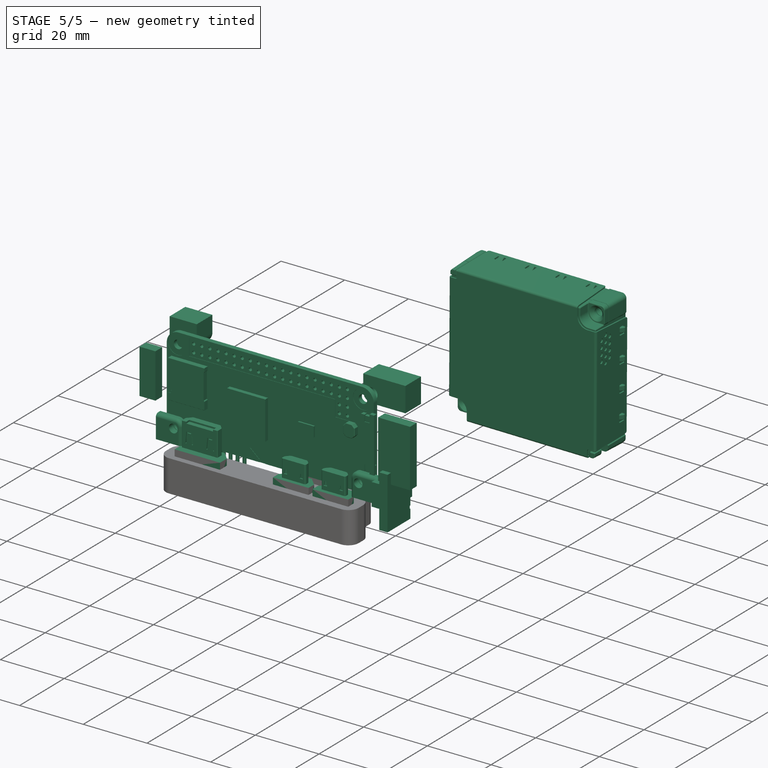
[diagram: stage 5 of 5 — iso view after this stage's code; geometry added in this stage tinted green]
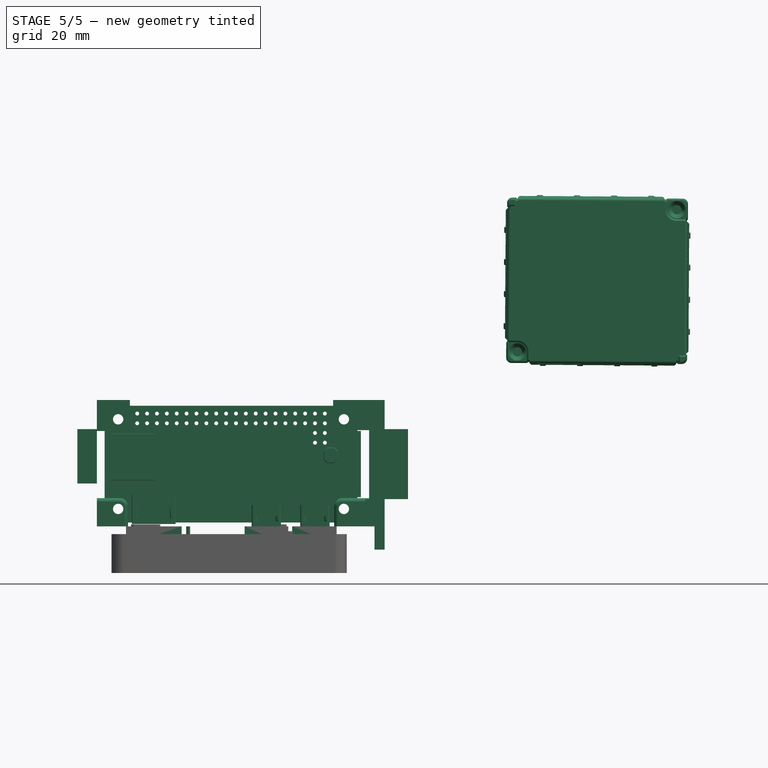
[diagram: stage 5 of 5 — front view after this stage's code; geometry added in this stage tinted green]
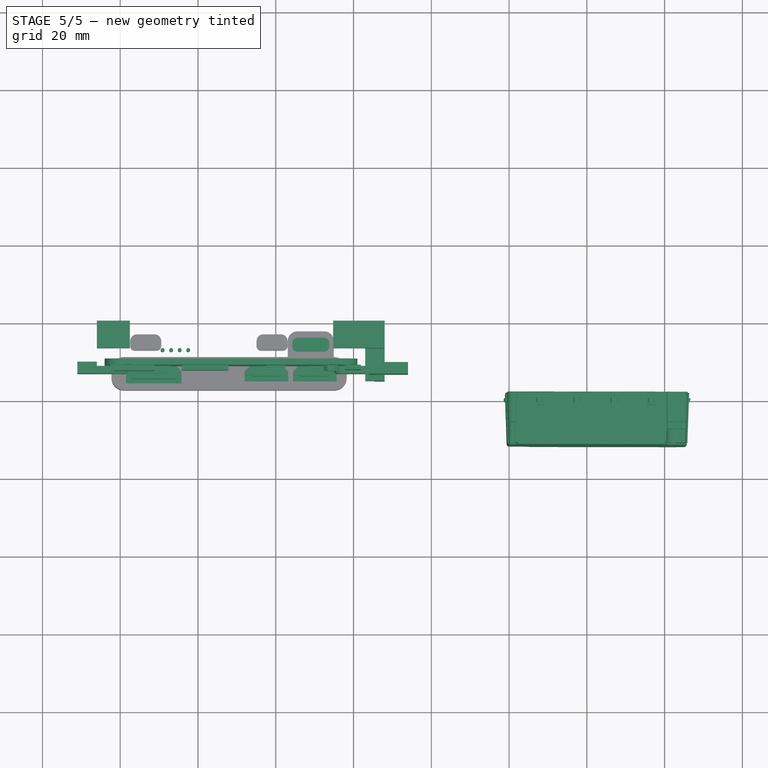
[diagram: stage 5 of 5 — top view after this stage's code; geometry added in this stage tinted green]
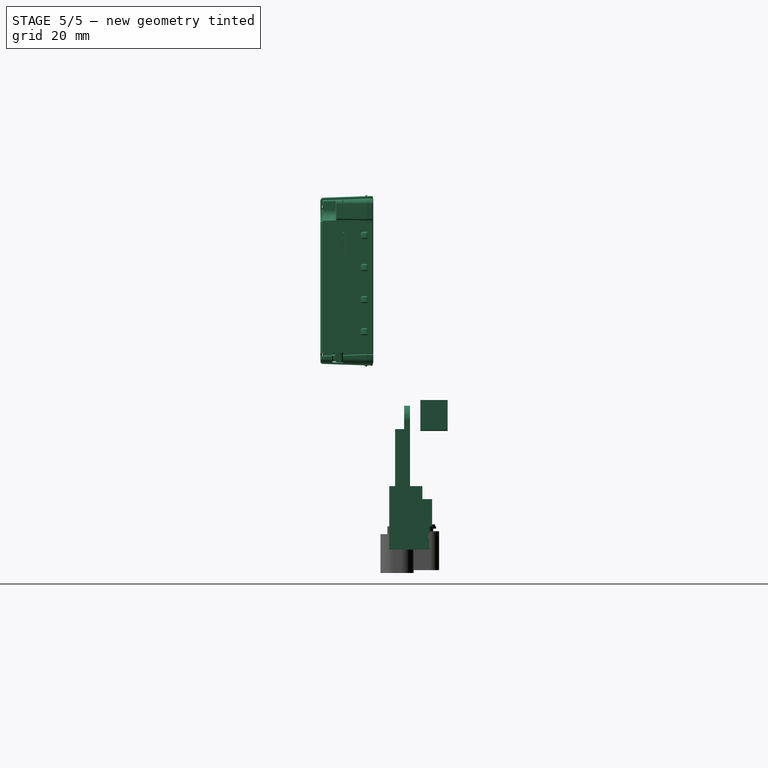
[diagram: stage 5 of 5 — right view after this stage's code; geometry added in this stage tinted green]
FEATURE [Part::Feature] Part__Feature023  label="COZIR"
  Placement = pos=(5.41029,2.97838,5.56111) rot=(0,0,1;0rad)
  shape: bbox 51.61 x 17 x 50.23 mm, 43 faces (baked)
FEATURE [Part::Feature] Part__Feature024  label="COMPOUND"
  shape: bbox 3.14 x 5 x 10.76 mm, 60 faces, 10 solids (baked)
FEATURE [App::Part] COZIR_Sensor_v2  label="COZIR Sensor v2"
  Group = -> [Part__Feature023,Part__Feature024]
  Origin = -> Origin001
  Placement = pos=(252.5,-22,91) rot=(0,1,0;4.71239rad)
FEATURE [Part::Feature] Part__Feature059  label="ips7100"
  Placement = pos=(-24,0,222) rot=(0.999993,-0.003655,0;3.14159rad)
  shape: bbox 48.14 x 14.05 x 44.14 mm, 1935 faces (baked)
FEATURE [Part::Compound] Compound  label="ips7100s"
  Links = -> [Part__Feature059]
  Placement = pos=(226.5,-19,-35) rot=(0,0.707107,0.707107;0.008727rad)
FEATURE [Part::Compound] Compound006  label="wearableCuts"
  Links = -> [Fusion191]
  Placement = pos=(72,9.5,-78) rot=(1,0,0;1.5708rad)
FEATURE [Part::Compound] Compound007  label="wearableHolds"
  Links = -> [Fillet054]
  Placement = pos=(72,9.5,-78) rot=(1,0,0;1.5708rad)
FEATURE [Part::Compound] Compound009  label="wearableCuts002"
  Links = -> [Fusion198,Fusion200]
  Placement = pos=(72,9.5,-78) rot=(1,0,0;1.5708rad)
FEATURE [Sketcher::SketchObject] Sketch213
  ArcFitTolerance = 0
  FullyConstrained = true
  MakeInternals = false
  Placement = pos=(148,0,0) rot=(0.57735,0.57735,0.57735;2.0944rad)
  sketch-geometry (14):
    g0: LineSegment StartX=-15 StartY=-82 StartZ=0 EndX=-4.75 EndY=-82 EndZ=0
    g1: LineSegment StartX=-4.75 StartY=-82 StartZ=0 EndX=-4.75 EndY=-79.15 EndZ=0
    g2: LineSegment StartX=-4.75 StartY=-79.15 StartZ=0 EndX=-5.05 EndY=-79.15 EndZ=0
    g3: LineSegment StartX=-5.05 StartY=-79.15 StartZ=0 EndX=-5.05 EndY=-78.25 EndZ=0
    g4: LineSegment StartX=-5.05 StartY=-78.25 StartZ=0 EndX=-4.75 EndY=-78.25 EndZ=0
    g5: LineSegment StartX=-4.75 StartY=-78.25 StartZ=0 EndX=-4.75 EndY=-75.65 EndZ=0
    g6: LineSegment StartX=-15 StartY=-82 StartZ=0 EndX=-15 EndY=-65.65 EndZ=0
    g7: LineSegment StartX=-15 StartY=-65.65 StartZ=0 EndX=-6.5 EndY=-65.65 EndZ=0
    g8: LineSegment StartX=-6.5 StartY=-65.65 StartZ=0 EndX=-6.5 EndY=-75.65 EndZ=0
    g9: LineSegment StartX=-6.5 StartY=-75.65 StartZ=0 EndX=-6 EndY=-75.65 EndZ=0
    g10: LineSegment StartX=-6 StartY=-75.65 StartZ=0 EndX=-6 EndY=-75.1 EndZ=0
    g11: LineSegment StartX=-6 StartY=-75.1 StartZ=0 EndX=-5 EndY=-75.1 EndZ=0
    g12: LineSegment StartX=-5 StartY=-75.1 StartZ=0 EndX=-5 EndY=-75.65 EndZ=0
    g13: LineSegment StartX=-5 StartY=-75.65 StartZ=0 EndX=-4.75 EndY=-75.65 EndZ=0
  constraints (42):
    c: Horizontal(g0)
    c: Coincident(g1,g0)
    c: Vertical(g1)
    c: Coincident(g2,g1)
    c: Vertical(g3)
    c: Vertical(g5)
    c: Horizontal(g2)
    c: Horizontal(g4)
    c: Coincident(g3,g4)
    c: Coincident(g2,g3)
    c: Coincident(g4,g5)
    c: DistanceX(g0) = -4.75
    c: DistanceX(g2,g2) = 0.3
    c: DistanceX(g1,g4) = 0
    c: DistanceY(g3,g3) = 0.9
    c: DistanceX(g6) = -15
    c: DistanceY(g5,g5) = 2.6
    c: DistanceY(g0) = -82
    c: DistanceY(g1,g1) = 2.85
    c: Vertical(g6)
    c: Coincident(g7,g6)
    c: Horizontal(g11)
    c: Coincident(g12,g11)
    c: Coincident(g13,g12)
    c: Coincident(g13,g5)
    c: Horizontal(g13)
    c: Horizontal(g7)
    c: Coincident(g7,g8)
    c: Vertical(g8)
    c: Coincident(g8,g9)
    c: Vertical(g10)
    c: Coincident(g10,g11)
    c: Horizontal(g9)
    c: Vertical(g12)
    c: Coincident(g9,g10)
    c: DistanceX(g13,g13) = 0.25
    c: DistanceX(g11,g11) = 1
    c: DistanceX(g9,g9) = 0.5
    c: DistanceY(g10,g10) = 0.55
    c: DistanceY(g8,g8) = 10
    c: Horizontal(g12,g9)
    c: Coincident(g0,g6)
FEATURE [Part::Extrusion] Extrude212  label="switchCut"
  Base = -> Sketch213
  Dir = (1,0,0)
  DirMode = 2
  FaceMakerClass = Part::FaceMakerBullseye
  FaceMakerMode = 3
  LengthFwd = 2.6
  LengthRev = 0
  Reversed = true
  Solid = true
  Symmetric = false
FEATURE [Sketcher::SketchObject] Sketch214
  ArcFitTolerance = 0
  FullyConstrained = true
  MakeInternals = false
  Placement = pos=(148,0,0) rot=(0.57735,0.57735,0.57735;2.0944rad)
  sketch-geometry (4):
    g0: LineSegment StartX=-4 StartY=-76 StartZ=0 EndX=-15 EndY=-76 EndZ=0
    g1: LineSegment StartX=-15 StartY=-76 StartZ=0 EndX=-15 EndY=-69 EndZ=0
    g2: LineSegment StartX=-15 StartY=-69 StartZ=0 EndX=-4 EndY=-69 EndZ=0
    g3: LineSegment StartX=-4 StartY=-69 StartZ=0 EndX=-4 EndY=-76 EndZ=0
  constraints (12):
    c: Coincident(g0,g1)
    c: Coincident(g1,g2)
    c: Coincident(g2,g3)
    c: Coincident(g3,g0)
    c: Horizontal(g0)
    c: Horizontal(g2)
    c: Vertical(g1)
    c: Vertical(g3)
    c: DistanceX(g0) = -4
    c: DistanceY(g0) = -76
    c: DistanceX(g0,g0) = 11
    c: DistanceY(g0,g2) = 7
FEATURE [Part::Extrusion] Extrude213  label="baseIn"
  Base = -> Sketch214
  Dir = (1,0,0)
  DirMode = 2
  FaceMakerClass = Part::FaceMakerBullseye
  FaceMakerMode = 3
  LengthFwd = 5
  LengthRev = 0
  Reversed = true
  Solid = true
  Symmetric = false
FEATURE [Sketcher::SketchObject] Sketch227
  ArcFitTolerance = 0
  FullyConstrained = true
  MakeInternals = false
  Placement = pos=(0,0,0) rot=(1,0,0;1.5708rad)
  sketch-geometry (12):
    g0: LineSegment StartX=79.5 StartY=-51.5 StartZ=0 EndX=74 EndY=-51.5 EndZ=0
    g1: LineSegment StartX=74 StartY=-51.5 StartZ=0 EndX=74 EndY=-43.5 EndZ=0
    g2: LineSegment StartX=74 StartY=-43.5 StartZ=0 EndX=82.5 EndY=-43.5 EndZ=0
    g3: LineSegment StartX=82.5 StartY=-43.5 StartZ=0 EndX=82.5 EndY=-48.5 EndZ=0
    g4: ArcOfCircle CenterX=79.5 CenterY=-48.5 CenterZ=0 NormalX=0 NormalY=0 NormalZ=1 AngleXU=0 Radius=3 StartAngle=4.71239 EndAngle=6.28319
    g5: Circle CenterX=79.5 CenterY=-48.5 CenterZ=0 NormalX=0 NormalY=0 NormalZ=1 AngleXU=0 Radius=1.75
    g6: LineSegment StartX=148 StartY=-51.25 StartZ=0 EndX=137.5 EndY=-51.25 EndZ=0
    g7: LineSegment StartX=148 StartY=-43.5 StartZ=0 EndX=134.75 EndY=-43.5 EndZ=0
    g8: LineSegment StartX=134.75 StartY=-43.5 StartZ=0 EndX=134.75 EndY=-48.5 EndZ=0
    g9: ArcOfCircle CenterX=137.5 CenterY=-48.5 CenterZ=0 NormalX=0 NormalY=0 NormalZ=1 AngleXU=0 Radius=2.75 StartAngle=3.14159 EndAngle=4.71239
    g10: LineSegment StartX=148 StartY=-51.25 StartZ=0 EndX=148 EndY=-43.5 EndZ=0
    g11: Circle CenterX=137.5 CenterY=-48.5 CenterZ=0 NormalX=0 NormalY=0 NormalZ=1 AngleXU=0 Radius=1.75
  constraints (36):
    c: Horizontal(g0)
    c: Coincident(g1,g0)
    c: Vertical(g1)
    c: Coincident(g2,g1)
    c: Horizontal(g2)
    c: Coincident(g3,g2)
    c: Vertical(g3)
    c: Coincident(g4,g3)
    c: Angle(g4) = 1.5708
    c: Coincident(g0,g4)
    c: DistanceY(g0) = -51.5
    c: Vertical(g0,g4)
    c: DistanceX(g4) = 79.5
    c: DistanceY(g4) = -48.5
    c: DistanceX(g0) = 74
    c: Coincident(g5,g4)
    c: Diameter(g5) = 3.5
    c: Horizontal(g6)
    c: Horizontal(g7)
    c: Coincident(g8,g7)
    c: Vertical(g8)
    c: Coincident(g9,g6)
    c: Coincident(g9,g8)
    c: Horizontal(g9,g4)
    c: DistanceX(g4,g9) = 58
    c: DistanceX(g9,g6) = 10.5
    c: Coincident(g10,g6)
    c: Coincident(g10,g7)
    c: Vertical(g10)
    c: Angle(g9) = 1.5708
    c: Horizontal(g9,g8)
    c: Diameter(g9) = 5.5
    c: Coincident(g11,g9)
    c: Diameter(g11) = 3.5
    c: DistanceY(g1,g1) = 8
    c: DistanceY(g2,g7) = 0
FEATURE [Part::Extrusion] Extrude226  label="piZeroHolds"
  Base = -> Sketch227
  Dir = (0,-1,2e-16)
  DirMode = 2
  FaceMakerClass = Part::FaceMakerBullseye
  FaceMakerMode = 3
  LengthFwd = 7
  LengthRev = 0
  Solid = true
  Symmetric = false
FEATURE [Part::Feature] pisugar3Board001003
  shape: bbox 65 x 30.4 x 6 mm, 19726 faces, 0 solids (baked)
FEATURE [Part::Compound] Compound014  label="PiDuo001"
  Links = -> [pisugar3Board001003,Part__Feature333]
  Placement = pos=(72,9.5,-78) rot=(1,0,0;1.5708rad)
FEATURE [App::Part] Part  label="piZeroParts"
  Group = -> [Extrude014,Extrude015,Sketch014,Sketch015,Fusion018,Extrude229,Extrude230,Sketch231,Sketch232,Fusion223,Sketch227,Extrude226,Extrude201,Extrude202,Extrude203,Extrude204,Extrude205,Extrude206,Extrude207,Fusion198,Fusion199,Fusion200,Fusion201,Sketch202,Sketch203,Sketch204,Sketch205,Sketch206,Sketch207,Sketch208,Compound009,Part__Feature333,pisugar3Board001003,Compound014,Sketch213,Extrude212,+26 more]
  Origin = -> Origin021
  Placement = pos=(94,-4,0) rot=(0,0,1;0rad)
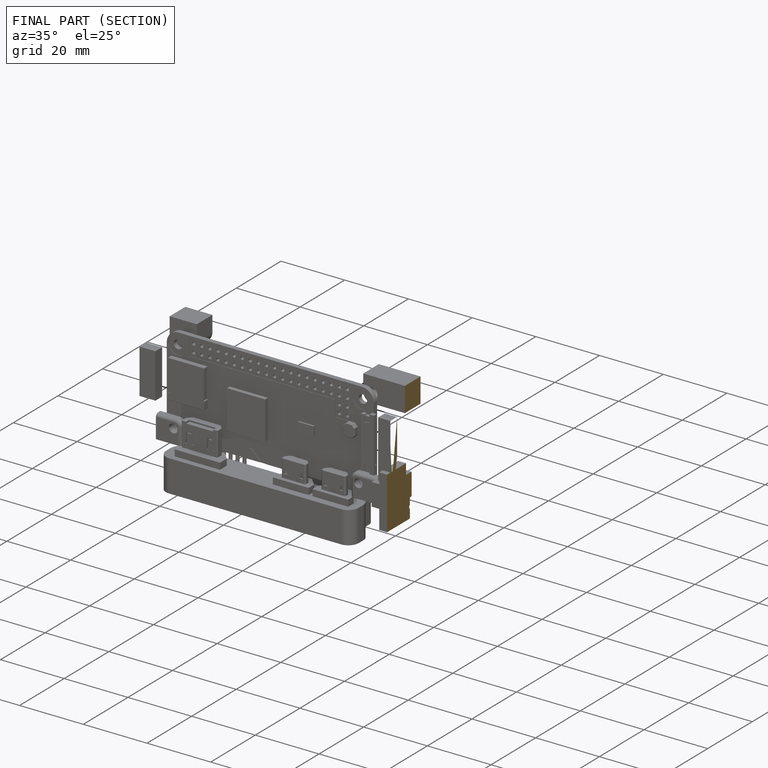
[diagram: finished part — half-section view (interior)]
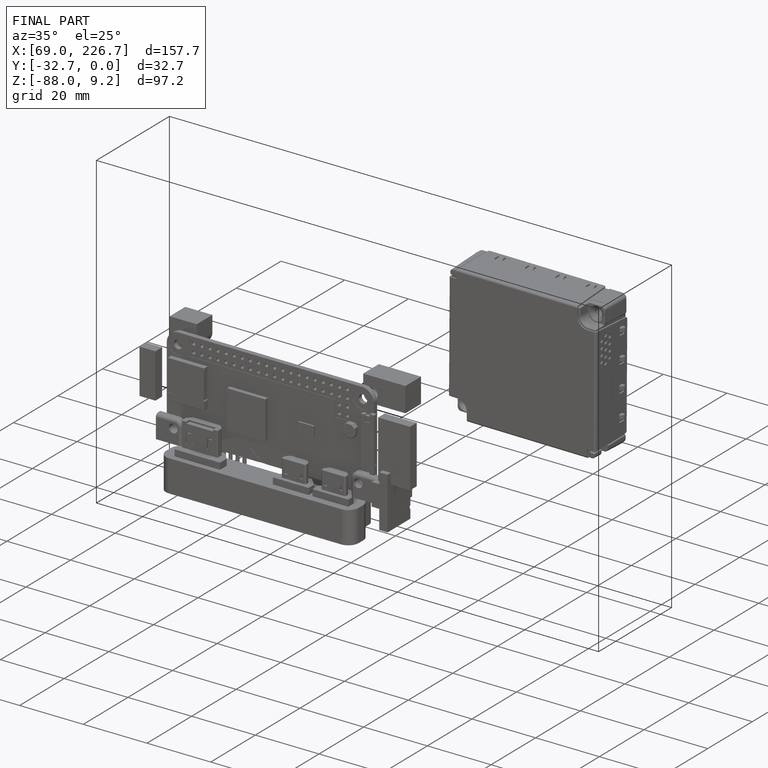
[diagram: finished part — iso view with bounding-box wireframe]
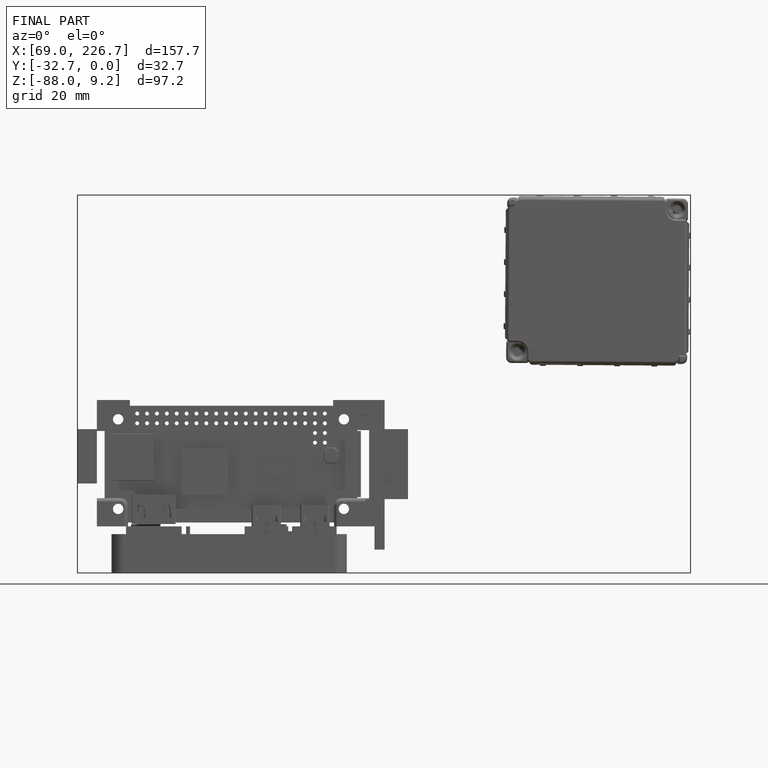
[diagram: finished part — front view with bounding-box wireframe]
